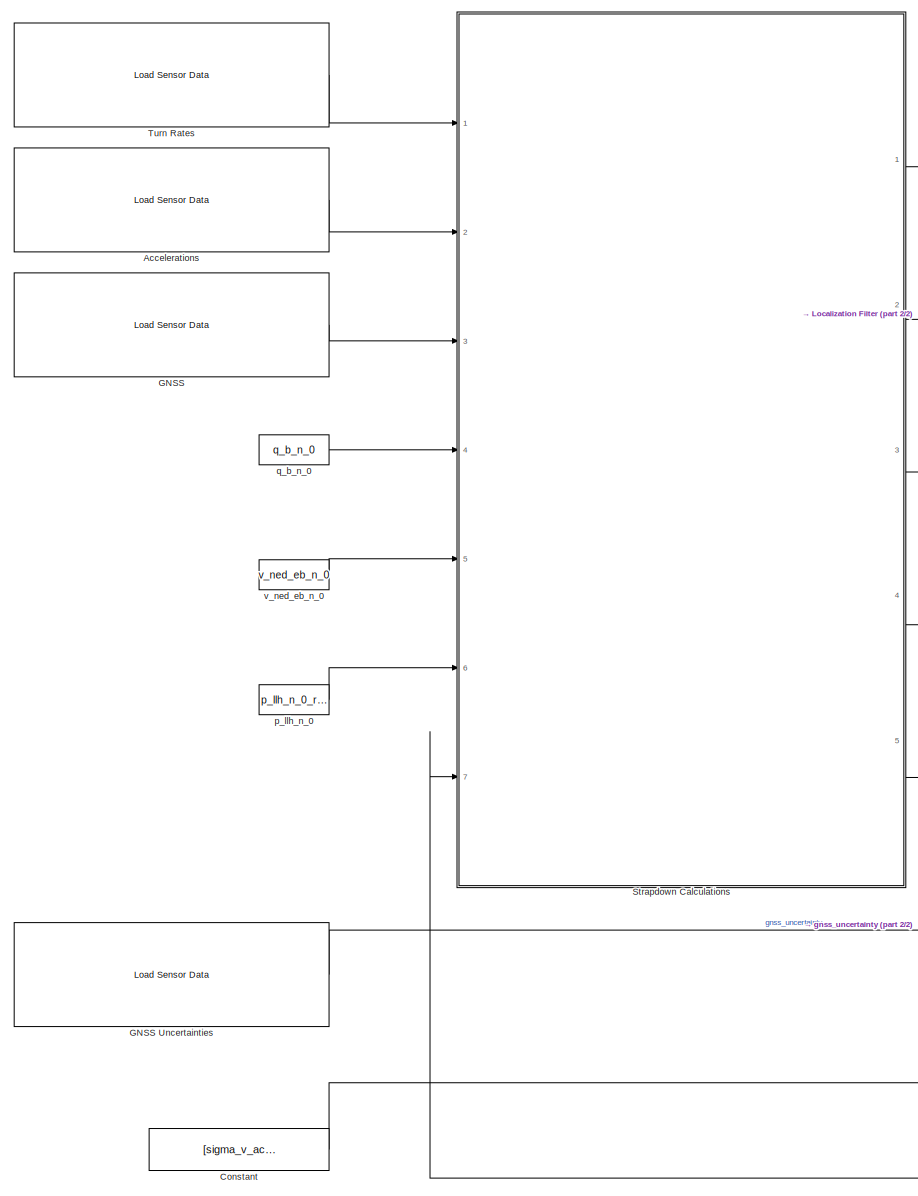
[diagram: root canvas - part 1/2, left side, full height]
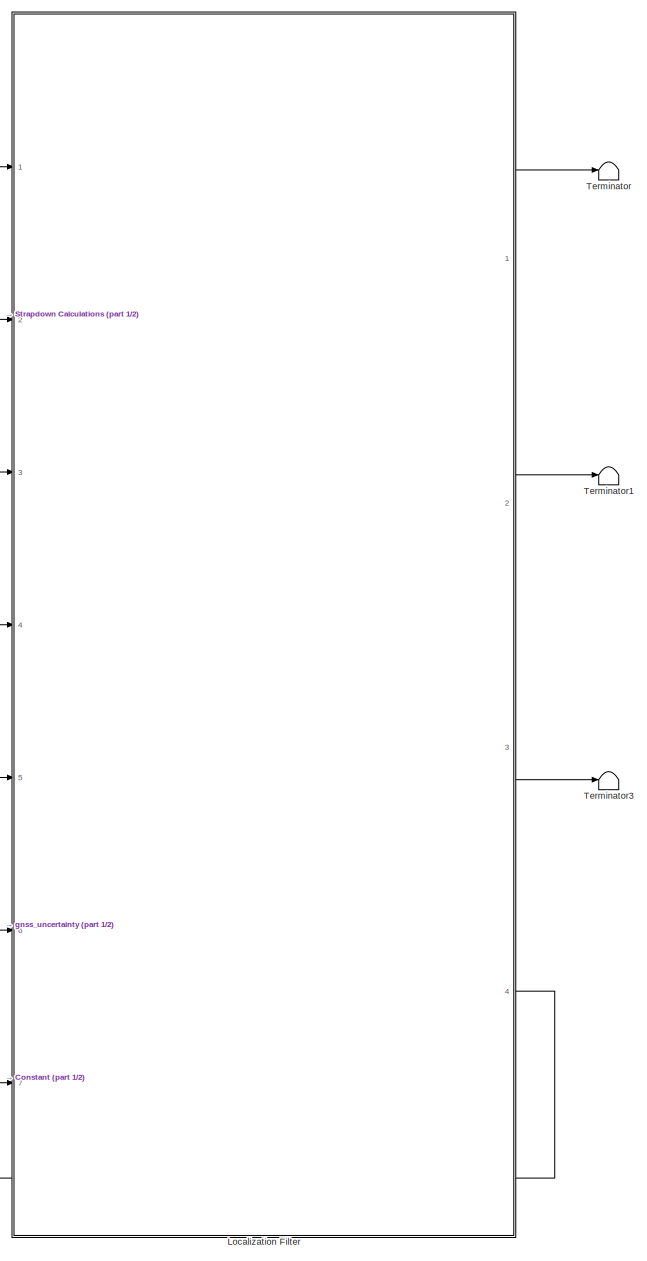
[diagram: root canvas - part 2/2, right side, full height]
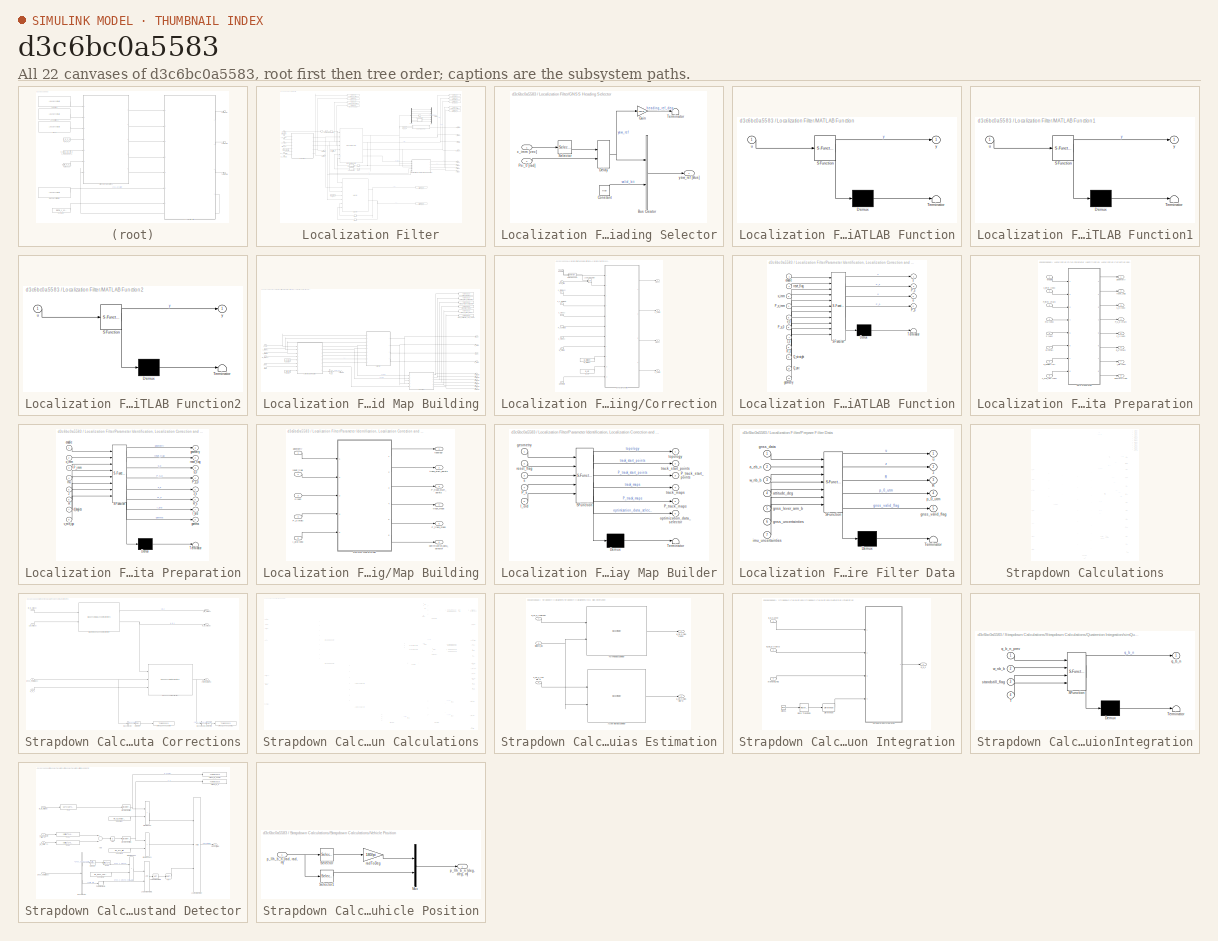
[diagram: thumbnail index - all 22 canvases of the model, root first then tree order]
MODEL slx_d3c6bc0a5583
KIND model
CONFIG AbsTol = auto
CONFIG EnableMultiTasking = off
CONFIG FixedStep = sample_time
CONFIG InitFcn = initLocalization\ninsertArtificialOutages
CONFIG MaxStep = auto
CONFIG MinStep = auto
CONFIG PreLoadFcn = initLocalization
CONFIG RelTol = 1e-3
CONFIG SampleTimeConstraint = Unconstrained
CONFIG Solver = FixedStepAuto
CONFIG SolverName = FixedStepAuto
CONFIG StartTime = 0.0
CONFIG StopFcn = simout_data_prepared = false;\nmap_data_prepared = false;\n% prepareSimOutData
CONFIG StopTime = 310
BLOCK [Reference] Accelerations  REF=libMdl_RecordedData/Load Sensor Data
  Ports = [0, 1]
  SourceBlock = libMdl_RecordedData/Load Sensor Data
  SourceType = Load Sensor Data From Workspace
BLOCK [Constant] Constant
  Value = [sigma_v_acc;sigma_v_gyro]
BLOCK [Reference] GNSS  REF=libMdl_RecordedData/Load Sensor Data
  Ports = [0, 1]
  SourceBlock = libMdl_RecordedData/Load Sensor Data
  SourceType = Load Sensor Data From Workspace
BLOCK [Reference] GNSS Uncertainties  REF=libMdl_RecordedData/Load Sensor Data
  Ports = [0, 1]
  SourceBlock = libMdl_RecordedData/Load Sensor Data
  SourceType = Load Sensor Data From Workspace
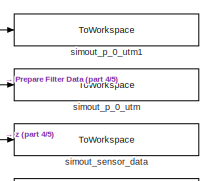
[diagram: Localization Filter - part 1/5, top center region]
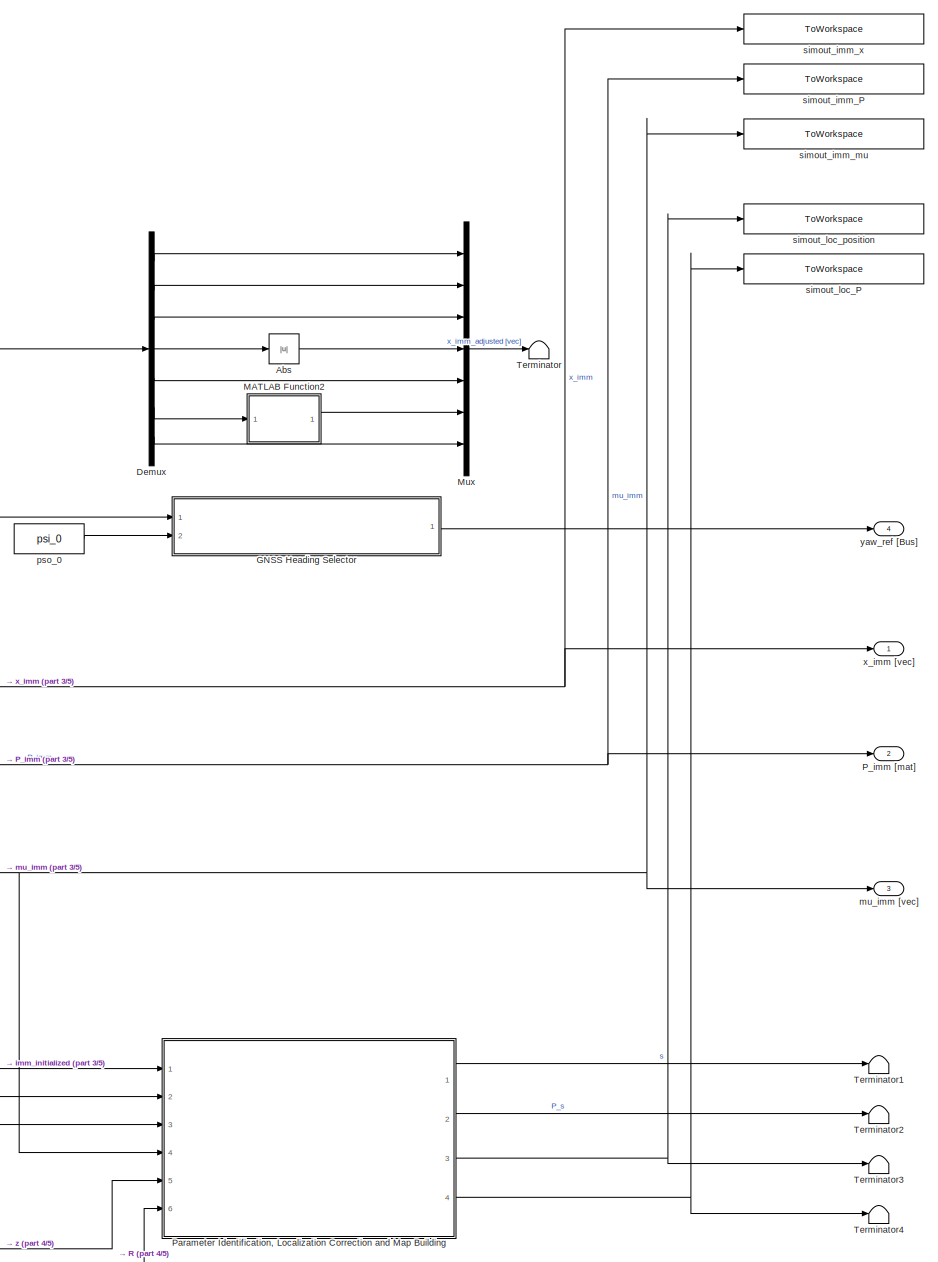
[diagram: Localization Filter - part 2/5, top right region]
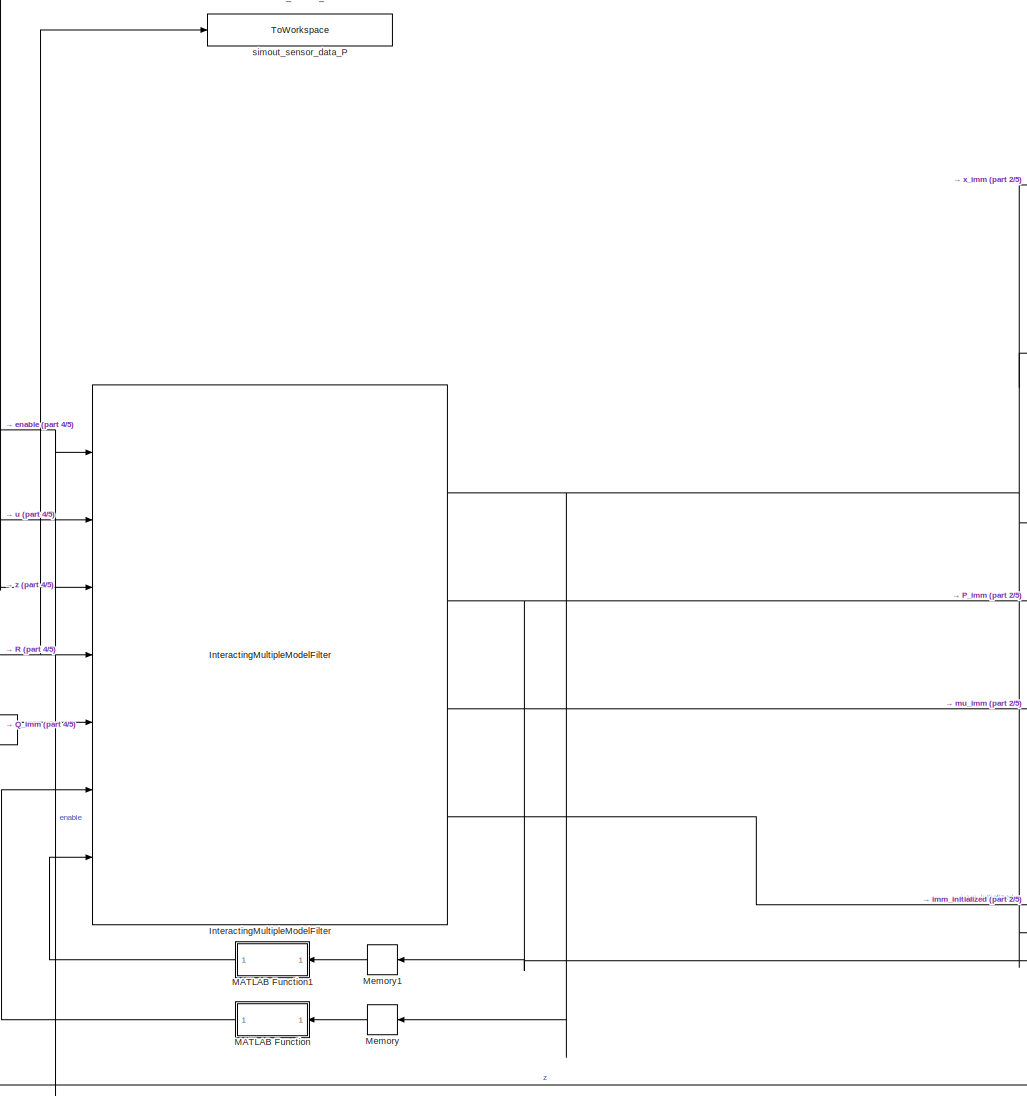
[diagram: Localization Filter - part 3/5, central region]
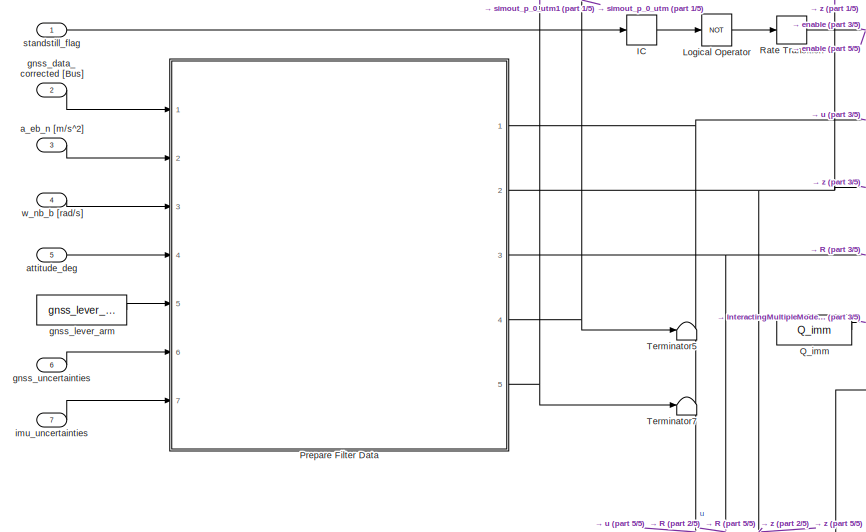
[diagram: Localization Filter - part 4/5, middle left region]
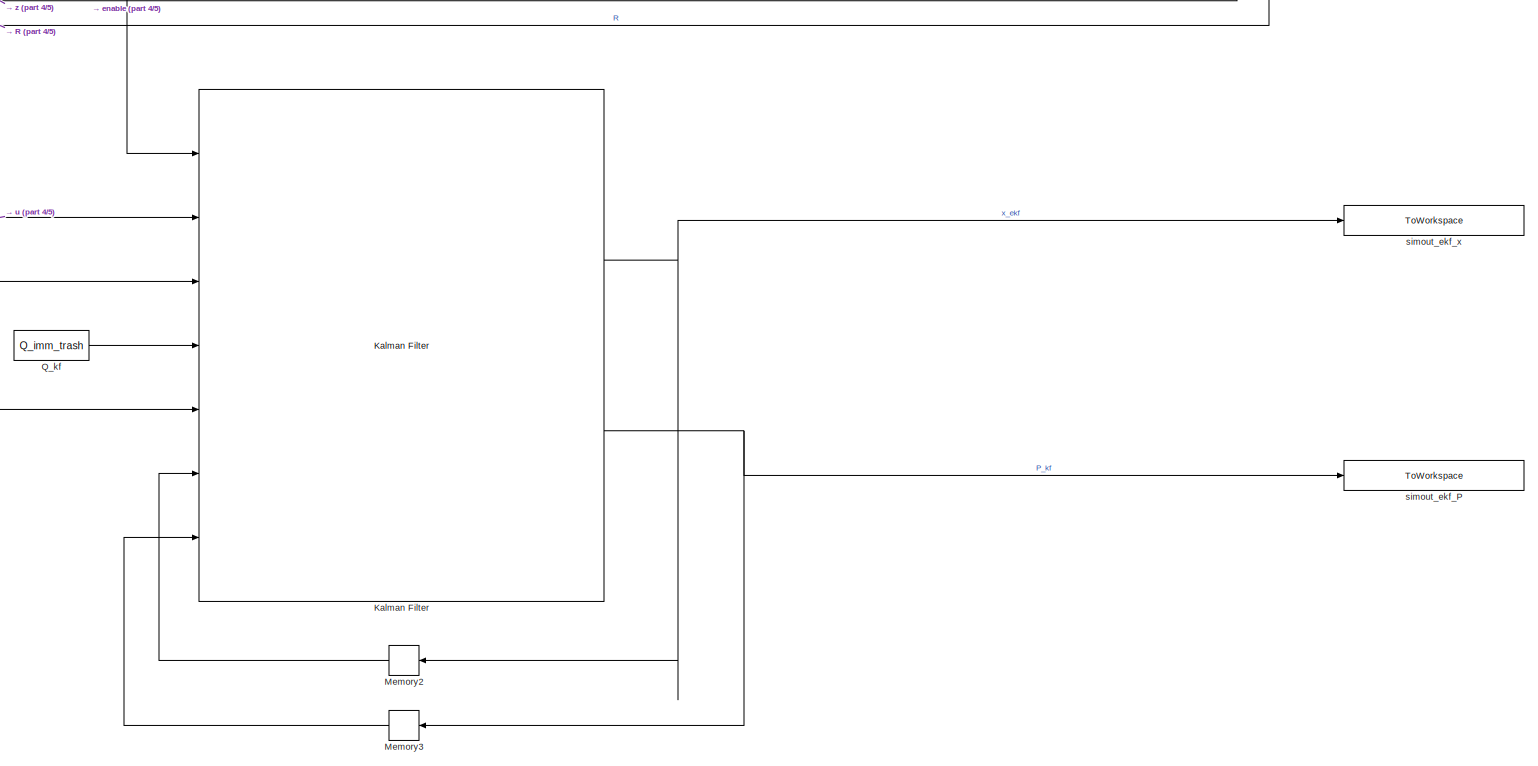
[diagram: Localization Filter - part 5/5, bottom center region]
BLOCK [SubSystem] Localization Filter
  Ports = [7, 4]
  RequestExecContextInheritance = off
BLOCK [Abs] Localization Filter/Abs
  SaturateOnIntegerOverflow = off
BLOCK [Demux] Localization Filter/Demux
  DisplayOption = bar
  Outputs = 7
  Ports = [1, 7]
BLOCK [SubSystem] Localization Filter/GNSS Heading Selector
  Ports = [2, 1]
  RequestExecContextInheritance = off
BLOCK [BusCreator] Localization Filter/GNSS Heading Selector/Bus Creator
  DisplayOption = bar
  InheritFromInputs = on
  Inputs = 2
  Ports = [2, 1]
BLOCK [Constant] Localization Filter/GNSS Heading Selector/Constant
  Value = true
BLOCK [Delay] Localization Filter/GNSS Heading Selector/Delay
  DelayLength = 1
  InitialCondition = 0
  InitialConditionSource = Input port
  InputPortMap = u0,p4
  Ports = [2, 1]
BLOCK [Gain] Localization Filter/GNSS Heading Selector/Gain
  Gain = 180/pi
  OutDataTypeStr = Inherit: Inherit via internal rule
  ParamDataTypeStr = Inherit: Inherit via internal rule
  SaturateOnIntegerOverflow = off
BLOCK [Inport] Localization Filter/GNSS Heading Selector/Psi_0 [rad]
  IconDisplay = Port number
  Port = 2
BLOCK [Selector] Localization Filter/GNSS Heading Selector/Selector
  IndexOptions = Index vector (dialog)
  Indices = 6
  InputPortWidth = 7
  OutputSizes = 1
  Ports = [1, 1]
BLOCK [Terminator] Localization Filter/GNSS Heading Selector/Terminator
BLOCK [Inport] Localization Filter/GNSS Heading Selector/x_imm [vec]
  IconDisplay = Port number
BLOCK [Outport] Localization Filter/GNSS Heading Selector/yaw_ref [Bus]
  IconDisplay = Port number
BLOCK [InitialCondition] Localization Filter/IC
BLOCK [Reference] Localization Filter/InteractingMultipleModelFilter  REF=libMdl_Imm/InteractingMultipleModelFilter
  Ports = [7, 4]
  SourceBlock = libMdl_Imm/InteractingMultipleModelFilter
  SourceType = Interacting Multiple Model Filter
BLOCK [Reference] Localization Filter/Kalman Filter  REF=libMdl_KalmanFilter/Kalman Filter
  Ports = [7, 2]
  SourceBlock = libMdl_KalmanFilter/Kalman Filter
  SourceType = Kalman Filter
BLOCK [Logic] Localization Filter/Logical Operator
  AllPortsSameDT = off
  Operator = NOT
  OutDataTypeStr = boolean
  Ports = [1, 1]
BLOCK [SubSystem] Localization Filter/MATLAB Function
  ErrorFcn = Stateflow.Translate.translate
  PermitHierarchicalResolution = ExplicitOnly
  Ports = [1, 1]
  RequestExecContextInheritance = off
  SFBlockType = MATLAB Function
  TreatAsAtomicUnit = on
BLOCK [Demux] Localization Filter/MATLAB Function/ Demux 
  DisplayOption = bar
  Outputs = 1
  Ports = [1, 1]
BLOCK [S-Function] Localization Filter/MATLAB Function/ SFunction 
  EnableBusSupport = on
  FunctionName = sf_sfun
  PortCounts = [1 2]
  Ports = [1, 2]
  SFcnIsStateOwnerBlock = off
  SFunctionDeploymentMode = off
  Tag = Stateflow S-Function 1
BLOCK [Terminator] Localization Filter/MATLAB Function/ Terminator 
BLOCK [Inport] Localization Filter/MATLAB Function/u
  IconDisplay = Port number
BLOCK [Outport] Localization Filter/MATLAB Function/y
  IconDisplay = Port number
BLOCK [SubSystem] Localization Filter/MATLAB Function1
  ErrorFcn = Stateflow.Translate.translate
  PermitHierarchicalResolution = ExplicitOnly
  Ports = [1, 1]
  RequestExecContextInheritance = off
  SFBlockType = MATLAB Function
  TreatAsAtomicUnit = on
BLOCK [Demux] Localization Filter/MATLAB Function1/ Demux 
  DisplayOption = bar
  Outputs = 1
  Ports = [1, 1]
BLOCK [S-Function] Localization Filter/MATLAB Function1/ SFunction 
  EnableBusSupport = on
  FunctionName = sf_sfun
  PortCounts = [1 2]
  Ports = [1, 2]
  SFcnIsStateOwnerBlock = off
  SFunctionDeploymentMode = off
  Tag = Stateflow S-Function 4
BLOCK [Terminator] Localization Filter/MATLAB Function1/ Terminator 
BLOCK [Inport] Localization Filter/MATLAB Function1/u
  IconDisplay = Port number
BLOCK [Outport] Localization Filter/MATLAB Function1/y
  IconDisplay = Port number
BLOCK [SubSystem] Localization Filter/MATLAB Function2
  ErrorFcn = Stateflow.Translate.translate
  PermitHierarchicalResolution = ExplicitOnly
  Ports = [1, 1]
  RequestExecContextInheritance = off
  SFBlockType = MATLAB Function
  TreatAsAtomicUnit = on
BLOCK [Demux] Localization Filter/MATLAB Function2/ Demux 
  DisplayOption = bar
  Outputs = 1
  Ports = [1, 1]
BLOCK [S-Function] Localization Filter/MATLAB Function2/ SFunction 
  EnableBusSupport = on
  FunctionName = sf_sfun
  PortCounts = [1 2]
  Ports = [1, 2]
  SFcnIsStateOwnerBlock = off
  SFunctionDeploymentMode = off
  Tag = Stateflow S-Function 2
BLOCK [Terminator] Localization Filter/MATLAB Function2/ Terminator 
BLOCK [Inport] Localization Filter/MATLAB Function2/u
  IconDisplay = Port number
BLOCK [Outport] Localization Filter/MATLAB Function2/y
  IconDisplay = Port number
BLOCK [Memory] Localization Filter/Memory
BLOCK [Memory] Localization Filter/Memory1
BLOCK [Memory] Localization Filter/Memory2
BLOCK [Memory] Localization Filter/Memory3
BLOCK [Mux] Localization Filter/Mux
  DisplayOption = bar
  Inputs = 7
  Ports = [7, 1]
BLOCK [Outport] Localization Filter/P_imm [mat]
  IconDisplay = Port number
  Port = 2
BLOCK [SubSystem] Localization Filter/Parameter Identification, Localization Correction and Map Building
  Ports = [6, 4]
  RequestExecContextInheritance = off
  SystemSampleTime = imm_sample_time
  TreatAsAtomicUnit = on
BLOCK [SubSystem] Localization Filter/Parameter Identification, Localization Correction and Map Building/Correction
  Ports = [9, 4]
  RequestExecContextInheritance = off
BLOCK [SubSystem] Localization Filter/Parameter Identification, Localization Correction and Map Building/Correction Data Preparation
  Ports = [8, 8]
  RequestExecContextInheritance = off
BLOCK [SubSystem] Localization Filter/Parameter Identification, Localization Correction and Map Building/Correction Data Preparation/Data Preparation
  ErrorFcn = Stateflow.Translate.translate
  PermitHierarchicalResolution = ExplicitOnly
  Ports = [8, 8]
  RequestExecContextInheritance = off
  SFBlockType = MATLAB Function
  TreatAsAtomicUnit = on
BLOCK [Demux] Localization Filter/Parameter Identification, Localization Correction and Map Building/Correction Data Preparation/Data Preparation/ Demux 
  DisplayOption = bar
  Outputs = 1
  Ports = [1, 1]
BLOCK [S-Function] Localization Filter/Parameter Identification, Localization Correction and Map Building/Correction Data Preparation/Data Preparation/ SFunction 
  EnableBusSupport = on
  FunctionName = sf_sfun
  PortCounts = [8 9]
  Ports = [8, 9]
  SFcnIsStateOwnerBlock = off
  SFunctionDeploymentMode = off
  Tag = Stateflow S-Function 8
BLOCK [Terminator] Localization Filter/Parameter Identification, Localization Correction and Map Building/Correction Data Preparation/Data Preparation/ Terminator 
BLOCK [Inport] Localization Filter/Parameter Identification, Localization Correction and Map Building/Correction Data Preparation/Data Preparation/P_imm
  IconDisplay = Port number
  Port = 3
BLOCK [Outport] Localization Filter/Parameter Identification, Localization Correction and Map Building/Correction Data Preparation/Data Preparation/P_s_0
  IconDisplay = Port number
  Port = 4
BLOCK [Inport] Localization Filter/Parameter Identification, Localization Correction and Map Building/Correction Data Preparation/Data Preparation/R
  IconDisplay = Port number
  Port = 6
BLOCK [Outport] Localization Filter/Parameter Identification, Localization Correction and Map Building/Correction Data Preparation/Data Preparation/R_s
  IconDisplay = Port number
  Port = 6
BLOCK [Inport] Localization Filter/Parameter Identification, Localization Correction and Map Building/Correction Data Preparation/Data Preparation/d_bogies
  IconDisplay = Port number
  Port = 7
BLOCK [Inport] Localization Filter/Parameter Identification, Localization Correction and Map Building/Correction Data Preparation/Data Preparation/enable
  IconDisplay = Port number
BLOCK [Outport] Localization Filter/Parameter Identification, Localization Correction and Map Building/Correction Data Preparation/Data Preparation/gamma
  IconDisplay = Port number
  Port = 8
BLOCK [Outport] Localization Filter/Parameter Identification, Localization Correction and Map Building/Correction Data Preparation/Data Preparation/geometry
  IconDisplay = Port number
BLOCK [Outport] Localization Filter/Parameter Identification, Localization Correction and Map Building/Correction Data Preparation/Data Preparation/l_old
  IconDisplay = Port number
  Port = 7
BLOCK [Inport] Localization Filter/Parameter Identification, Localization Correction and Map Building/Correction Data Preparation/Data Preparation/mu
  IconDisplay = Port number
  Port = 4
BLOCK [Outport] Localization Filter/Parameter Identification, Localization Correction and Map Building/Correction Data Preparation/Data Preparation/reset_flag
  IconDisplay = Port number
  Port = 2
BLOCK [Outport] Localization Filter/Parameter Identification, Localization Correction and Map Building/Correction Data Preparation/Data Preparation/s_0
  IconDisplay = Port number
  Port = 3
BLOCK [Inport] Localization Filter/Parameter Identification, Localization Correction and Map Building/Correction Data Preparation/Data Preparation/v_min_tgc
  IconDisplay = Port number
  Port = 8
BLOCK [Inport] Localization Filter/Parameter Identification, Localization Correction and Map Building/Correction Data Preparation/Data Preparation/x_imm
  IconDisplay = Port number
  Port = 2
BLOCK [Inport] Localization Filter/Parameter Identification, Localization Correction and Map Building/Correction Data Preparation/Data Preparation/z
  IconDisplay = Port number
  Port = 5
BLOCK [Outport] Localization Filter/Parameter Identification, Localization Correction and Map Building/Correction Data Preparation/Data Preparation/z_s
  IconDisplay = Port number
  Port = 5
BLOCK [Inport] Localization Filter/Parameter Identification, Localization Correction and Map Building/Correction Data Preparation/P_imm [mat]
  IconDisplay = Port number
  Port = 3
BLOCK [Outport] Localization Filter/Parameter Identification, Localization Correction and Map Building/Correction Data Preparation/P_s_0 [mat]
  IconDisplay = Port number
  Port = 4
  VectorParamsAs1DForOutWhenUnconnected = off
BLOCK [Inport] Localization Filter/Parameter Identification, Localization Correction and Map Building/Correction Data Preparation/R [mat]
  IconDisplay = Port number
  Port = 7
BLOCK [Outport] Localization Filter/Parameter Identification, Localization Correction and Map Building/Correction Data Preparation/R_s [mat]
  IconDisplay = Port number
  Port = 6
  VectorParamsAs1DForOutWhenUnconnected = off
BLOCK [Inport] Localization Filter/Parameter Identification, Localization Correction and Map Building/Correction Data Preparation/d_bogies [m]
  IconDisplay = Port number
  Port = 5
BLOCK [Inport] Localization Filter/Parameter Identification, Localization Correction and Map Building/Correction Data Preparation/enable
  IconDisplay = Port number
BLOCK [Outport] Localization Filter/Parameter Identification, Localization Correction and Map Building/Correction Data Preparation/gamma [rad]
  IconDisplay = Port number
  Port = 8
  VectorParamsAs1DForOutWhenUnconnected = off
BLOCK [Outport] Localization Filter/Parameter Identification, Localization Correction and Map Building/Correction Data Preparation/geometry
  IconDisplay = Port number
  VectorParamsAs1DForOutWhenUnconnected = off
BLOCK [Outport] Localization Filter/Parameter Identification, Localization Correction and Map Building/Correction Data Preparation/l_old [vec]
  IconDisplay = Port number
  Port = 7
  VectorParamsAs1DForOutWhenUnconnected = off
BLOCK [Inport] Localization Filter/Parameter Identification, Localization Correction and Map Building/Correction Data Preparation/mu [vec]
  IconDisplay = Port number
  Port = 4
BLOCK [Outport] Localization Filter/Parameter Identification, Localization Correction and Map Building/Correction Data Preparation/reset_flag
  IconDisplay = Port number
  Port = 2
  VectorParamsAs1DForOutWhenUnconnected = off
BLOCK [Outport] Localization Filter/Parameter Identification, Localization Correction and Map Building/Correction Data Preparation/s_0 [vec]
  IconDisplay = Port number
  Port = 3
  VectorParamsAs1DForOutWhenUnconnected = off
BLOCK [Inport] Localization Filter/Parameter Identification, Localization Correction and Map Building/Correction Data Preparation/v_min_tgc [vec]
  IconDisplay = Port number
  Port = 8
BLOCK [Inport] Localization Filter/Parameter Identification, Localization Correction and Map Building/Correction Data Preparation/x_imm [vec]
  IconDisplay = Port number
  Port = 2
BLOCK [Inport] Localization Filter/Parameter Identification, Localization Correction and Map Building/Correction Data Preparation/z [vec]
  IconDisplay = Port number
  Port = 6
BLOCK [Outport] Localization Filter/Parameter Identification, Localization Correction and Map Building/Correction Data Preparation/z_s [vec]
  IconDisplay = Port number
  Port = 5
  VectorParamsAs1DForOutWhenUnconnected = off
BLOCK [Reference] Localization Filter/Parameter Identification, Localization Correction and Map Building/Correction/Detect Change  REF=simulink/Logic and Bit
Operations/Detect
Change
  Ports = [1, 1]
  SourceBlock = simulink/Logic and Bit\nOperations/Detect\nChange
  SourceProductBaseCode = SL
  SourceType = Detect Change
BLOCK [Logic] Localization Filter/Parameter Identification, Localization Correction and Map Building/Correction/Logical Operator
  AllPortsSameDT = off
  Operator = OR
  OutDataTypeStr = boolean
  Ports = [2, 1]
BLOCK [SubSystem] Localization Filter/Parameter Identification, Localization Correction and Map Building/Correction/MATLAB Function
  ErrorFcn = Stateflow.Translate.translate
  PermitHierarchicalResolution = ExplicitOnly
  Ports = [11, 4]
  RequestExecContextInheritance = off
  SFBlockType = MATLAB Function
  TreatAsAtomicUnit = on
BLOCK [Demux] Localization Filter/Parameter Identification, Localization Correction and Map Building/Correction/MATLAB Function/ Demux 
  DisplayOption = bar
  Outputs = 1
  Ports = [1, 1]
BLOCK [S-Function] Localization Filter/Parameter Identification, Localization Correction and Map Building/Correction/MATLAB Function/ SFunction 
  EnableBusSupport = on
  FunctionName = sf_sfun
  PortCounts = [11 5]
  Ports = [11, 5]
  SFcnIsStateOwnerBlock = off
  SFunctionDeploymentMode = off
  Tag = Stateflow S-Function 5
BLOCK [Terminator] Localization Filter/Parameter Identification, Localization Correction and Map Building/Correction/MATLAB Function/ Terminator 
BLOCK [Outport] Localization Filter/Parameter Identification, Localization Correction and Map Building/Correction/MATLAB Function/P_o
  IconDisplay = Port number
  Port = 4
BLOCK [Outport] Localization Filter/Parameter Identification, Localization Correction and Map Building/Correction/MATLAB Function/P_s
  IconDisplay = Port number
  Port = 2
BLOCK [Inport] Localization Filter/Parameter Identification, Localization Correction and Map Building/Correction/MATLAB Function/P_s_0
  IconDisplay = Port number
  Port = 6
BLOCK [Inport] Localization Filter/Parameter Identification, Localization Correction and Map Building/Correction/MATLAB Function/P_x_imm
  IconDisplay = Port number
  Port = 4
BLOCK [Inport] Localization Filter/Parameter Identification, Localization Correction and Map Building/Correction/MATLAB Function/Q_arc
  IconDisplay = Port number
  Port = 10
BLOCK [Inport] Localization Filter/Parameter Identification, Localization Correction and Map Building/Correction/MATLAB Function/Q_straight
  IconDisplay = Port number
  Port = 9
BLOCK [Inport] Localization Filter/Parameter Identification, Localization Correction and Map Building/Correction/MATLAB Function/R_s
  IconDisplay = Port number
  Port = 8
BLOCK [Inport] Localization Filter/Parameter Identification, Localization Correction and Map Building/Correction/MATLAB Function/enable
  IconDisplay = Port number
BLOCK [Inport] Localization Filter/Parameter Identification, Localization Correction and Map Building/Correction/MATLAB Function/geometry
  IconDisplay = Port number
  Port = 11
BLOCK [Outport] Localization Filter/Parameter Identification, Localization Correction and Map Building/Correction/MATLAB Function/o
  IconDisplay = Port number
  Port = 3
BLOCK [Inport] Localization Filter/Parameter Identification, Localization Correction and Map Building/Correction/MATLAB Function/reset_flag
  IconDisplay = Port number
  Port = 2
BLOCK [Outport] Localization Filter/Parameter Identification, Localization Correction and Map Building/Correction/MATLAB Function/s
  IconDisplay = Port number
BLOCK [Inport] Localization Filter/Parameter Identification, Localization Correction and Map Building/Correction/MATLAB Function/s_0
  IconDisplay = Port number
  Port = 5
BLOCK [Inport] Localization Filter/Parameter Identification, Localization Correction and Map Building/Correction/MATLAB Function/x_imm
  IconDisplay = Port number
  Port = 3
BLOCK [Inport] Localization Filter/Parameter Identification, Localization Correction and Map Building/Correction/MATLAB Function/z_s
  IconDisplay = Port number
  Port = 7
BLOCK [Outport] Localization Filter/Parameter Identification, Localization Correction and Map Building/Correction/P_o [mat]
  IconDisplay = Port number
  Port = 4
  VectorParamsAs1DForOutWhenUnconnected = off
BLOCK [Outport] Localization Filter/Parameter Identification, Localization Correction and Map Building/Correction/P_s [mat]
  IconDisplay = Port number
  Port = 2
  VectorParamsAs1DForOutWhenUnconnected = off
BLOCK [Inport] Localization Filter/Parameter Identification, Localization Correction and Map Building/Correction/P_s_0 [mat]
  IconDisplay = Port number
  Port = 7
BLOCK [Inport] Localization Filter/Parameter Identification, Localization Correction and Map Building/Correction/P_x_imm [mat]
  IconDisplay = Port number
  Port = 3
BLOCK [Constant] Localization Filter/Parameter Identification, Localization Correction and Map Building/Correction/Q_arc
  Value = Q_arc
BLOCK [Constant] Localization Filter/Parameter Identification, Localization Correction and Map Building/Correction/Q_straight
  Value = Q_straight
BLOCK [Inport] Localization Filter/Parameter Identification, Localization Correction and Map Building/Correction/R_s [mat]
  IconDisplay = Port number
  Port = 9
BLOCK [Inport] Localization Filter/Parameter Identification, Localization Correction and Map Building/Correction/enable
  IconDisplay = Port number
BLOCK [Inport] Localization Filter/Parameter Identification, Localization Correction and Map Building/Correction/geometry
  IconDisplay = Port number
  Port = 4
BLOCK [Outport] Localization Filter/Parameter Identification, Localization Correction and Map Building/Correction/o [vec]
  IconDisplay = Port number
  Port = 3
  VectorParamsAs1DForOutWhenUnconnected = off
BLOCK [Inport] Localization Filter/Parameter Identification, Localization Correction and Map Building/Correction/reset_flag
  IconDisplay = Port number
  Port = 5
BLOCK [Outport] Localization Filter/Parameter Identification, Localization Correction and Map Building/Correction/s [vec]
  IconDisplay = Port number
  VectorParamsAs1DForOutWhenUnconnected = off
BLOCK [Inport] Localization Filter/Parameter Identification, Localization Correction and Map Building/Correction/s_0 [vec]
  IconDisplay = Port number
  Port = 6
BLOCK [Inport] Localization Filter/Parameter Identification, Localization Correction and Map Building/Correction/x_imm [vec]
  IconDisplay = Port number
  Port = 2
BLOCK [Inport] Localization Filter/Parameter Identification, Localization Correction and Map Building/Correction/z_s [vec]
  IconDisplay = Port number
  Port = 8
BLOCK [Gain] Localization Filter/Parameter Identification, Localization Correction and Map Building/Gain
  Gain = 180/pi
  OutDataTypeStr = Inherit: Inherit via internal rule
  ParamDataTypeStr = Inherit: Inherit via internal rule
  SaturateOnIntegerOverflow = off
BLOCK [SubSystem] Localization Filter/Parameter Identification, Localization Correction and Map Building/Map Building
  Ports = [5, 6]
  RequestExecContextInheritance = off
BLOCK [Inport] Localization Filter/Parameter Identification, Localization Correction and Map Building/Map Building/P_s [mat]
  IconDisplay = Port number
  Port = 4
BLOCK [Outport] Localization Filter/Parameter Identification, Localization Correction and Map Building/Map Building/P_track_maps
  IconDisplay = Port number
  Port = 5
  VectorParamsAs1DForOutWhenUnconnected = off
BLOCK [Outport] Localization Filter/Parameter Identification, Localization Correction and Map Building/Map Building/P_track_start_points
  IconDisplay = Port number
  Port = 3
  VectorParamsAs1DForOutWhenUnconnected = off
BLOCK [SubSystem] Localization Filter/Parameter Identification, Localization Correction and Map Building/Map Building/Railway Map Builder
  ErrorFcn = Stateflow.Translate.translate
  PermitHierarchicalResolution = ExplicitOnly
  Ports = [5, 6]
  RequestExecContextInheritance = off
  SFBlockType = MATLAB Function
  TreatAsAtomicUnit = on
BLOCK [Demux] Localization Filter/Parameter Identification, Localization Correction and Map Building/Map Building/Railway Map Builder/ Demux 
  DisplayOption = bar
  Outputs = 1
  Ports = [1, 1]
BLOCK [S-Function] Localization Filter/Parameter Identification, Localization Correction and Map Building/Map Building/Railway Map Builder/ SFunction 
  EnableBusSupport = on
  FunctionName = sf_sfun
  Parameters = max_track_map_size
  PortCounts = [5 7]
  Ports = [5, 7]
  SFcnIsStateOwnerBlock = off
  SFunctionDeploymentMode = off
  Tag = Stateflow S-Function 7
BLOCK [Terminator] Localization Filter/Parameter Identification, Localization Correction and Map Building/Map Building/Railway Map Builder/ Terminator 
BLOCK [Inport] Localization Filter/Parameter Identification, Localization Correction and Map Building/Map Building/Railway Map Builder/P_s
  IconDisplay = Port number
  Port = 4
BLOCK [Outport] Localization Filter/Parameter Identification, Localization Correction and Map Building/Map Building/Railway Map Builder/P_track_maps
  IconDisplay = Port number
  Port = 5
BLOCK [Outport] Localization Filter/Parameter Identification, Localization Correction and Map Building/Map Building/Railway Map Builder/P_track_start_points
  IconDisplay = Port number
  Port = 3
BLOCK [Inport] Localization Filter/Parameter Identification, Localization Correction and Map Building/Map Building/Railway Map Builder/geometry
  IconDisplay = Port number
BLOCK [Inport] Localization Filter/Parameter Identification, Localization Correction and Map Building/Map Building/Railway Map Builder/l_old
  IconDisplay = Port number
  Port = 5
BLOCK [Outport] Localization Filter/Parameter Identification, Localization Correction and Map Building/Map Building/Railway Map Builder/optimization_data_selector
  IconDisplay = Port number
  Port = 6
BLOCK [Inport] Localization Filter/Parameter Identification, Localization Correction and Map Building/Map Building/Railway Map Builder/reset_flag
  IconDisplay = Port number
  Port = 2
BLOCK [Inport] Localization Filter/Parameter Identification, Localization Correction and Map Building/Map Building/Railway Map Builder/s
  IconDisplay = Port number
  Port = 3
BLOCK [Outport] Localization Filter/Parameter Identification, Localization Correction and Map Building/Map Building/Railway Map Builder/topology
  IconDisplay = Port number
BLOCK [Outport] Localization Filter/Parameter Identification, Localization Correction and Map Building/Map Building/Railway Map Builder/track_maps
  IconDisplay = Port number
  Port = 4
BLOCK [Outport] Localization Filter/Parameter Identification, Localization Correction and Map Building/Map Building/Railway Map Builder/track_start_points
  IconDisplay = Port number
  Port = 2
BLOCK [Inport] Localization Filter/Parameter Identification, Localization Correction and Map Building/Map Building/geometry
  IconDisplay = Port number
BLOCK [Inport] Localization Filter/Parameter Identification, Localization Correction and Map Building/Map Building/l_old [vec]
  IconDisplay = Port number
  Port = 5
BLOCK [Outport] Localization Filter/Parameter Identification, Localization Correction and Map Building/Map Building/optimization_data_selector
  IconDisplay = Port number
  Port = 6
  VectorParamsAs1DForOutWhenUnconnected = off
BLOCK [Inport] Localization Filter/Parameter Identification, Localization Correction and Map Building/Map Building/reset_flag
  IconDisplay = Port number
  Port = 2
BLOCK [Inport] Localization Filter/Parameter Identification, Localization Correction and Map Building/Map Building/s [vec]
  IconDisplay = Port number
  Port = 3
BLOCK [Outport] Localization Filter/Parameter Identification, Localization Correction and Map Building/Map Building/topology
  IconDisplay = Port number
  VectorParamsAs1DForOutWhenUnconnected = off
BLOCK [Outport] Localization Filter/Parameter Identification, Localization Correction and Map Building/Map Building/track_maps
  IconDisplay = Port number
  Port = 4
  VectorParamsAs1DForOutWhenUnconnected = off
BLOCK [Outport] Localization Filter/Parameter Identification, Localization Correction and Map Building/Map Building/track_start_points
  IconDisplay = Port number
  Port = 2
  VectorParamsAs1DForOutWhenUnconnected = off
BLOCK [Inport] Localization Filter/Parameter Identification, Localization Correction and Map Building/P_imm [mat]
  IconDisplay = Port number
  Port = 3
BLOCK [Outport] Localization Filter/Parameter Identification, Localization Correction and Map Building/P_o [mat]
  IconDisplay = Port number
  Port = 4
  VectorParamsAs1DForOutWhenUnconnected = off
BLOCK [Outport] Localization Filter/Parameter Identification, Localization Correction and Map Building/P_s [mat]
  IconDisplay = Port number
  Port = 2
  VectorParamsAs1DForOutWhenUnconnected = off
BLOCK [Inport] Localization Filter/Parameter Identification, Localization Correction and Map Building/R [mat]
  IconDisplay = Port number
  Port = 6
BLOCK [Terminator] Localization Filter/Parameter Identification, Localization Correction and Map Building/Terminator1
BLOCK [Terminator] Localization Filter/Parameter Identification, Localization Correction and Map Building/Terminator2
  Commented = on
BLOCK [Terminator] Localization Filter/Parameter Identification, Localization Correction and Map Building/Terminator5
  Commented = on
BLOCK [Terminator] Localization Filter/Parameter Identification, Localization Correction and Map Building/Terminator6
  Commented = on
BLOCK [Terminator] Localization Filter/Parameter Identification, Localization Correction and Map Building/Terminator7
  Commented = on
BLOCK [Terminator] Localization Filter/Parameter Identification, Localization Correction and Map Building/Terminator8
  Commented = on
BLOCK [Terminator] Localization Filter/Parameter Identification, Localization Correction and Map Building/Terminator9
  Commented = on
BLOCK [Constant] Localization Filter/Parameter Identification, Localization Correction and Map Building/d_bogies
  Value = d_bogies
BLOCK [Inport] Localization Filter/Parameter Identification, Localization Correction and Map Building/enable
  IconDisplay = Port number
BLOCK [Inport] Localization Filter/Parameter Identification, Localization Correction and Map Building/mu_imm [vec]
  IconDisplay = Port number
  Port = 4
BLOCK [Outport] Localization Filter/Parameter Identification, Localization Correction and Map Building/o [vec]
  IconDisplay = Port number
  Port = 3
  VectorParamsAs1DForOutWhenUnconnected = off
BLOCK [Outport] Localization Filter/Parameter Identification, Localization Correction and Map Building/s [vec]
  IconDisplay = Port number
  VectorParamsAs1DForOutWhenUnconnected = off
BLOCK [ToWorkspace] Localization Filter/Parameter Identification, Localization Correction and Map Building/simout_P_track_maps
  FixptAsFi = on
  MaxDataPoints = 1
  Ports = [1]
  SampleTime = -1
  SaveFormat = Structure With Time
  VariableName = simout_P_track_maps
BLOCK [ToWorkspace] Localization Filter/Parameter Identification, Localization Correction and Map Building/simout_P_track_start_points
  FixptAsFi = on
  MaxDataPoints = 1
  Ports = [1]
  SampleTime = -1
  SaveFormat = Structure With Time
  VariableName = simout_P_track_start_points
BLOCK [ToWorkspace] Localization Filter/Parameter Identification, Localization Correction and Map Building/simout_optimization_data_selector
  FixptAsFi = on
  MaxDataPoints = 1
  Ports = [1]
  SampleTime = -1
  SaveFormat = Structure With Time
  VariableName = simout_optimization_data_selector
BLOCK [ToWorkspace] Localization Filter/Parameter Identification, Localization Correction and Map Building/simout_topology
  Commented = on
  FixptAsFi = on
  MaxDataPoints = 1
  Ports = [1]
  SampleTime = -1
  SaveFormat = Structure With Time
  VariableName = simout_topology
BLOCK [ToWorkspace] Localization Filter/Parameter Identification, Localization Correction and Map Building/simout_track_maps
  FixptAsFi = on
  MaxDataPoints = 1
  Ports = [1]
  SampleTime = -1
  SaveFormat = Structure With Time
  VariableName = simout_track_maps
BLOCK [ToWorkspace] Localization Filter/Parameter Identification, Localization Correction and Map Building/simout_track_start_points
  FixptAsFi = on
  MaxDataPoints = 1
  Ports = [1]
  SampleTime = -1
  SaveFormat = Structure With Time
  VariableName = simout_track_start_points
BLOCK [Constant] Localization Filter/Parameter Identification, Localization Correction and Map Building/v_min_tgc
  Value = v_min_tgc
BLOCK [Inport] Localization Filter/Parameter Identification, Localization Correction and Map Building/x_imm [vec]
  IconDisplay = Port number
  Port = 2
BLOCK [Inport] Localization Filter/Parameter Identification, Localization Correction and Map Building/z [vec]
  IconDisplay = Port number
  Port = 5
BLOCK [SubSystem] Localization Filter/Prepare Filter Data
  ErrorFcn = Stateflow.Translate.translate
  PermitHierarchicalResolution = ExplicitOnly
  Ports = [7, 5]
  RequestExecContextInheritance = off
  SFBlockType = MATLAB Function
  SystemSampleTime = imm_sample_time
  TreatAsAtomicUnit = on
BLOCK [Demux] Localization Filter/Prepare Filter Data/ Demux 
  DisplayOption = bar
  Outputs = 1
  Ports = [1, 1]
BLOCK [S-Function] Localization Filter/Prepare Filter Data/ SFunction 
  EnableBusSupport = on
  FunctionName = sf_sfun
  PortCounts = [7 6]
  Ports = [7, 6]
  SFcnIsStateOwnerBlock = off
  SFunctionDeploymentMode = off
  Tag = Stateflow S-Function 3
BLOCK [Terminator] Localization Filter/Prepare Filter Data/ Terminator 
BLOCK [Outport] Localization Filter/Prepare Filter Data/R
  IconDisplay = Port number
  Port = 3
BLOCK [Inport] Localization Filter/Prepare Filter Data/a_eb_n
  IconDisplay = Port number
  Port = 2
BLOCK [Inport] Localization Filter/Prepare Filter Data/attitude_deg
  IconDisplay = Port number
  Port = 4
BLOCK [Inport] Localization Filter/Prepare Filter Data/gnss_data
  IconDisplay = Port number
BLOCK [Inport] Localization Filter/Prepare Filter Data/gnss_lever_arm_b
  IconDisplay = Port number
  Port = 5
BLOCK [Inport] Localization Filter/Prepare Filter Data/gnss_uncertainties
  IconDisplay = Port number
  Port = 6
BLOCK [Outport] Localization Filter/Prepare Filter Data/gnss_valid_flag
  IconDisplay = Port number
  Port = 5
BLOCK [Inport] Localization Filter/Prepare Filter Data/imu_uncertainties
  IconDisplay = Port number
  Port = 7
BLOCK [Outport] Localization Filter/Prepare Filter Data/p_0_utm
  IconDisplay = Port number
  Port = 4
BLOCK [Outport] Localization Filter/Prepare Filter Data/u
  IconDisplay = Port number
BLOCK [Inport] Localization Filter/Prepare Filter Data/w_nb_b
  IconDisplay = Port number
  Port = 3
BLOCK [Outport] Localization Filter/Prepare Filter Data/z
  IconDisplay = Port number
  Port = 2
BLOCK [Constant] Localization Filter/Q_imm
  Value = Q_imm
BLOCK [Constant] Localization Filter/Q_kf
  Value = Q_imm_trash
BLOCK [RateTransition] Localization Filter/Rate Transition
BLOCK [Terminator] Localization Filter/Terminator
BLOCK [Terminator] Localization Filter/Terminator1
BLOCK [Terminator] Localization Filter/Terminator2
BLOCK [Terminator] Localization Filter/Terminator3
BLOCK [Terminator] Localization Filter/Terminator4
BLOCK [Terminator] Localization Filter/Terminator5
BLOCK [Terminator] Localization Filter/Terminator7
BLOCK [Inport] Localization Filter/a_eb_n [m//s^2]
  IconDisplay = Port number
  Port = 3
BLOCK [Inport] Localization Filter/attitude_deg
  IconDisplay = Port number
  Port = 5
BLOCK [Inport] Localization Filter/gnss_data_corrected [Bus]
  IconDisplay = Port number
  Port = 2
BLOCK [Constant] Localization Filter/gnss_lever_arm
  Value = gnss_lever_arm
BLOCK [Inport] Localization Filter/gnss_uncertainties
  IconDisplay = Port number
  Port = 6
BLOCK [Inport] Localization Filter/imu_uncertainties
  IconDisplay = Port number
  Port = 7
BLOCK [Outport] Localization Filter/mu_imm [vec]
  IconDisplay = Port number
  Port = 3
BLOCK [Constant] Localization Filter/pso_0
  Value = psi_0
BLOCK [ToWorkspace] Localization Filter/simout_ekf_P
  FixptAsFi = on
  MaxDataPoints = inf
  Ports = [1]
  SampleTime = -1
  SaveFormat = Timeseries
  VariableName = simout_ekf_P
BLOCK [ToWorkspace] Localization Filter/simout_ekf_x
  FixptAsFi = on
  MaxDataPoints = inf
  Ports = [1]
  SampleTime = -1
  SaveFormat = Timeseries
  VariableName = simout_ekf_x
BLOCK [ToWorkspace] Localization Filter/simout_imm_P
  FixptAsFi = on
  MaxDataPoints = inf
  Ports = [1]
  SampleTime = -1
  SaveFormat = Timeseries
  VariableName = simout_imm_P
BLOCK [ToWorkspace] Localization Filter/simout_imm_mu
  FixptAsFi = on
  MaxDataPoints = inf
  Ports = [1]
  SampleTime = -1
  SaveFormat = Timeseries
  VariableName = simout_imm_mu
BLOCK [ToWorkspace] Localization Filter/simout_imm_x
  FixptAsFi = on
  MaxDataPoints = inf
  Ports = [1]
  SampleTime = -1
  SaveFormat = Timeseries
  VariableName = simout_imm_x
BLOCK [ToWorkspace] Localization Filter/simout_loc_P
  FixptAsFi = on
  MaxDataPoints = inf
  Ports = [1]
  SampleTime = -1
  SaveFormat = Timeseries
  VariableName = simout_loc_P
BLOCK [ToWorkspace] Localization Filter/simout_loc_position
  FixptAsFi = on
  MaxDataPoints = inf
  Ports = [1]
  SampleTime = -1
  SaveFormat = Timeseries
  VariableName = simout_loc_position
BLOCK [ToWorkspace] Localization Filter/simout_p_0_utm
  FixptAsFi = on
  MaxDataPoints = 1
  Ports = [1]
  SampleTime = -1
  SaveFormat = Timeseries
  VariableName = simout_p_0_utm
BLOCK [ToWorkspace] Localization Filter/simout_p_0_utm1
  FixptAsFi = on
  MaxDataPoints = inf
  Ports = [1]
  SampleTime = -1
  SaveFormat = Timeseries
  VariableName = simout_gnss_valid_flag
BLOCK [ToWorkspace] Localization Filter/simout_sensor_data
  FixptAsFi = on
  MaxDataPoints = inf
  Ports = [1]
  SampleTime = -1
  SaveFormat = Timeseries
  VariableName = simout_sensor_data
BLOCK [ToWorkspace] Localization Filter/simout_sensor_data_P
  FixptAsFi = on
  MaxDataPoints = inf
  Ports = [1]
  SampleTime = -1
  SaveFormat = Timeseries
  VariableName = simout_sensor_data_P
BLOCK [Inport] Localization Filter/standstill_flag
  IconDisplay = Port number
BLOCK [Inport] Localization Filter/w_nb_b [rad//s]
  IconDisplay = Port number
  Port = 4
BLOCK [Outport] Localization Filter/x_imm [vec]
  IconDisplay = Port number
BLOCK [Outport] Localization Filter/yaw_ref [Bus]
  IconDisplay = Port number
  Port = 4
BLOCK [SubSystem] Strapdown Calculations
  Ports = [7, 5]
  RequestExecContextInheritance = off
BLOCK [Sum] Strapdown Calculations/Add
  InputSameDT = off
  Inputs = +-
  OutDataTypeStr = Inherit: Inherit via internal rule
  Ports = [2, 1]
  SaturateOnIntegerOverflow = off
BLOCK [Delay] Strapdown Calculations/Delay2
  DelayLength = 1
  InitialCondition = q_b_n_0
  InputPortMap = u0
  Ports = [1, 1]
BLOCK [Gain] Strapdown Calculations/Gain2
  AttributesFormatString = rad2deg
  Gain = 180/pi
  OutDataTypeStr = Inherit: Inherit via internal rule
  ParamDataTypeStr = Inherit: Inherit via internal rule
  SaturateOnIntegerOverflow = off
BLOCK [Reference] Strapdown Calculations/Quaternion Inverse  REF=libMdl_invQuat/Quaternion Inverse
  Ports = [1, 1]
  SourceBlock = libMdl_invQuat/Quaternion Inverse
BLOCK [SubSystem] Strapdown Calculations/Sensor Data Corrections
  Ports = [4, 3]
  RequestExecContextInheritance = off
BLOCK [BusSelector] Strapdown Calculations/Sensor Data Corrections/Bus Selector
  Commented = on
  OutputAsBus = off
  OutputSignals = sensor_data
  Ports = [1, 1]
BLOCK [BusSelector] Strapdown Calculations/Sensor Data Corrections/Bus Selector1
  Commented = on
  OutputAsBus = off
  OutputSignals = gnss_sensor_data_corrected
  Ports = [1, 1]
BLOCK [Reference] Strapdown Calculations/Sensor Data Corrections/GNSS Lever Arm Correction  REF=libMdl_GnssDataCorrector/GNSS Sensor Data Corrections
  Ports = [3, 1]
  SourceBlock = libMdl_GnssDataCorrector/GNSS Sensor Data Corrections
  SourceType = GNSS Sensor Data Corrections
BLOCK [Reference] Strapdown Calculations/Sensor Data Corrections/IMU Frame and Lever Arm Correction  REF=libMdl_ImuDataCorrector/IMU Sensor Data Lever Arm Corrections
  Ports = [2, 2]
  SourceBlock = libMdl_ImuDataCorrector/IMU Sensor Data Lever Arm Corrections
  SourceType = IMU Sensor Data Corrections
BLOCK [Selector] Strapdown Calculations/Sensor Data Corrections/Selector
  Commented = on
  IndexOptions = Index vector (dialog)
  Indices = 1:2
  InputPortWidth = 7
  OutputSizes = 1
  Ports = [1, 1]
BLOCK [Selector] Strapdown Calculations/Sensor Data Corrections/Selector1
  Commented = on
  IndexOptions = Index vector (dialog)
  Indices = 1:2
  InputPortWidth = 7
  OutputSizes = 1
  Ports = [1, 1]
BLOCK [Outport] Strapdown Calculations/Sensor Data Corrections/f_ib_b [m//s^2]
  IconDisplay = Port number
  Port = 2
BLOCK [Inport] Strapdown Calculations/Sensor Data Corrections/f_is_s [Bus]
  IconDisplay = Port number
  Port = 2
BLOCK [Inport] Strapdown Calculations/Sensor Data Corrections/gnss_data [Bus]
  IconDisplay = Port number
  Port = 3
BLOCK [Outport] Strapdown Calculations/Sensor Data Corrections/gnss_data_corrected [Bus]
  IconDisplay = Port number
  Port = 3
BLOCK [Inport] Strapdown Calculations/Sensor Data Corrections/q_b_n
  IconDisplay = Port number
  Port = 4
BLOCK [ToWorkspace] Strapdown Calculations/Sensor Data Corrections/simout_sensor_data
  Commented = on
  FixptAsFi = on
  MaxDataPoints = inf
  Ports = [1]
  SampleTime = -1
  SaveFormat = Timeseries
  VariableName = simout_test_data1
BLOCK [ToWorkspace] Strapdown Calculations/Sensor Data Corrections/simout_sensor_data1
  Commented = on
  FixptAsFi = on
  MaxDataPoints = inf
  Ports = [1]
  SampleTime = -1
  SaveFormat = Timeseries
  VariableName = simout_test_data2
BLOCK [Outport] Strapdown Calculations/Sensor Data Corrections/w_ib_b [rad//s]
  IconDisplay = Port number
BLOCK [Inport] Strapdown Calculations/Sensor Data Corrections/w_is_s [Bus]
  IconDisplay = Port number
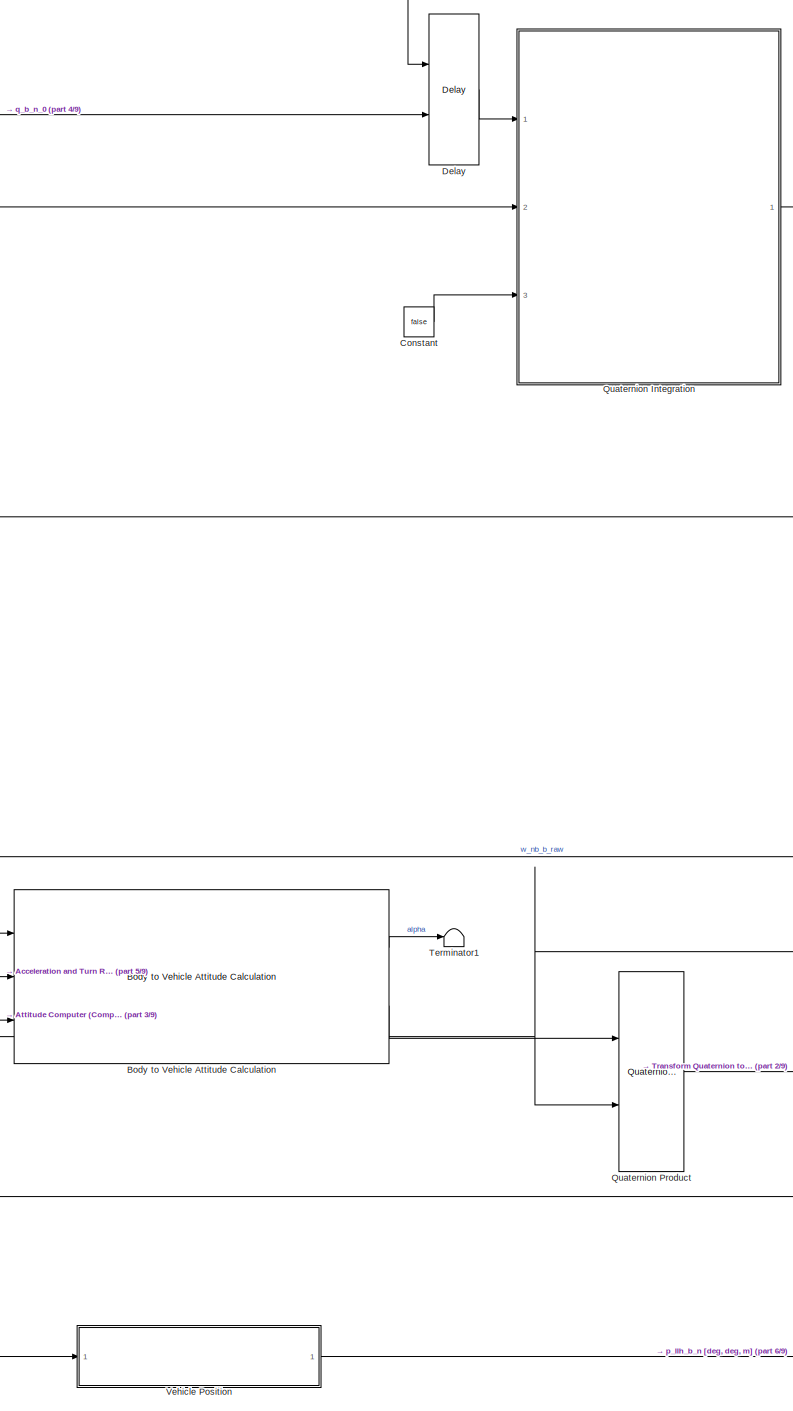
[diagram: Strapdown Calculations/Strapdown Calculations - part 1/9, top right region]
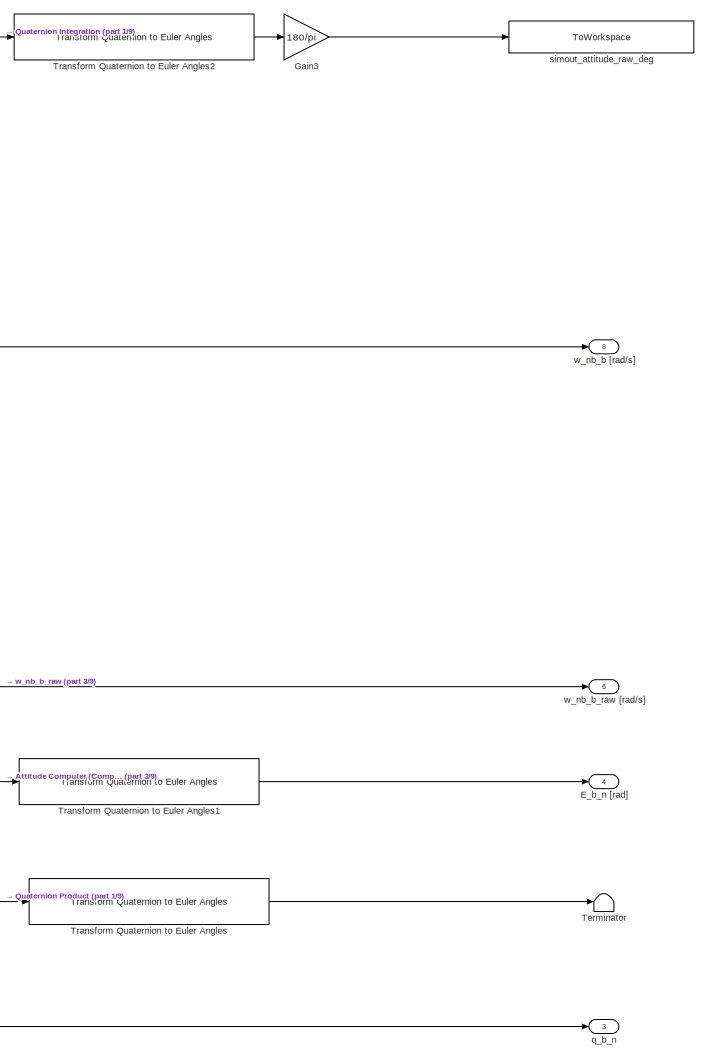
[diagram: Strapdown Calculations/Strapdown Calculations - part 2/9, top right region]
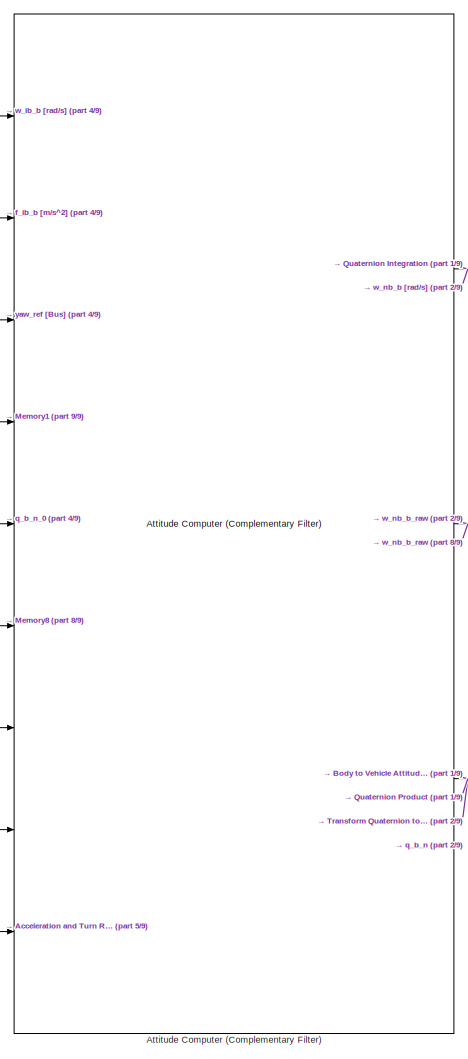
[diagram: Strapdown Calculations/Strapdown Calculations - part 3/9, top left region]
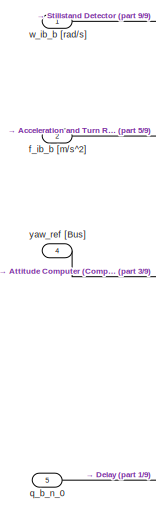
[diagram: Strapdown Calculations/Strapdown Calculations - part 4/9, top left region]
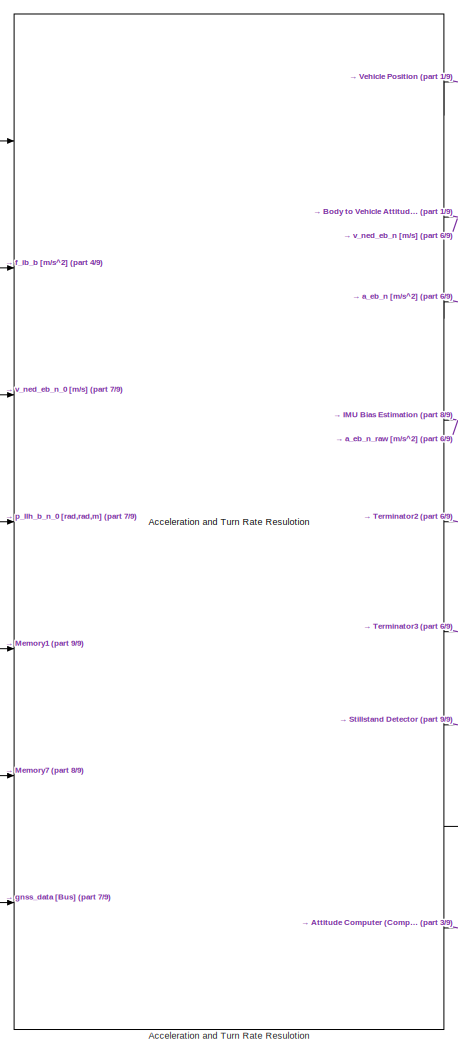
[diagram: Strapdown Calculations/Strapdown Calculations - part 5/9, central region]
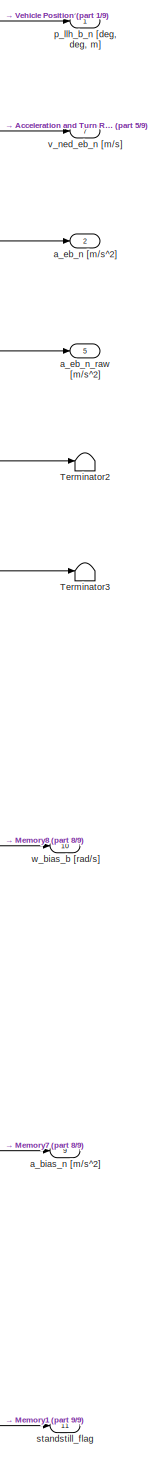
[diagram: Strapdown Calculations/Strapdown Calculations - part 6/9, bottom right region]
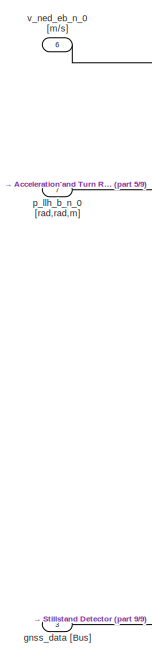
[diagram: Strapdown Calculations/Strapdown Calculations - part 7/9, bottom left region]
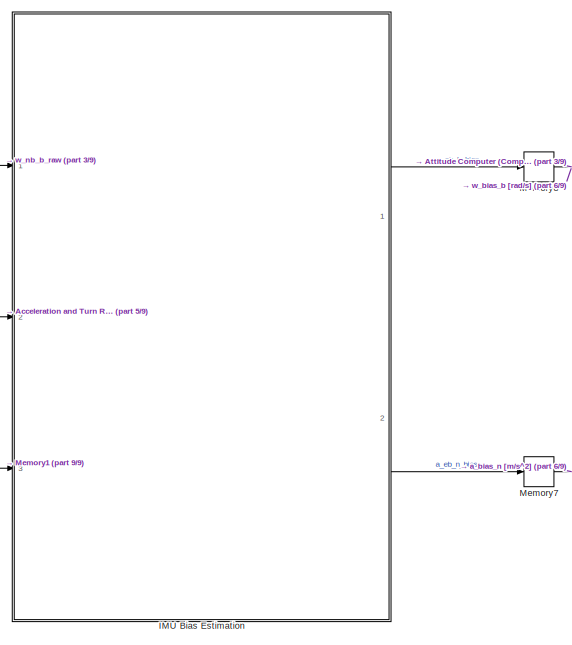
[diagram: Strapdown Calculations/Strapdown Calculations - part 8/9, bottom right region]
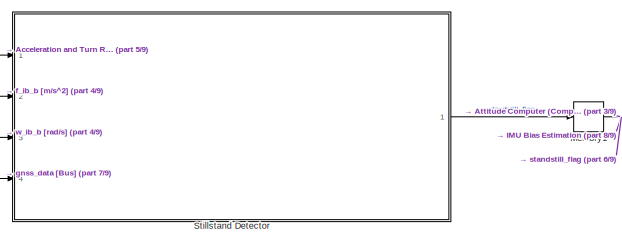
[diagram: Strapdown Calculations/Strapdown Calculations - part 9/9, bottom center region]
BLOCK [SubSystem] Strapdown Calculations/Strapdown Calculations
  Ports = [7, 11]
  RequestExecContextInheritance = off
BLOCK [Reference] Strapdown Calculations/Strapdown Calculations/Acceleration and Turn Rate Resulotion   REF=libMdl_AccIntegrator/Acceleration and Turn Rate Resulotion 
  Ports = [7, 9]
  SourceBlock = libMdl_AccIntegrator/Acceleration and Turn Rate Resulotion
BLOCK [Reference] Strapdown Calculations/Strapdown Calculations/Attitude Computer (Complementary Filter)  REF=libMdl_AttitudeComputer/Attitude Computer
(Complementary Filter)
  AttributesFormatString = see: Valenti et al., "Keeping a Good Attitude: A Quaternion-Based Orientation Filter for IMUs and MARGs", Sensors, pp. 19302-19330, 2015
  Ports = [9, 3]
  SourceBlock = libMdl_AttitudeComputer/Attitude Computer\n(Complementary Filter)
  SourceType = Attitude Computer
BLOCK [Reference] Strapdown Calculations/Strapdown Calculations/Body to Vehicle Attitude Calculation  REF=libMdl_CarriageMisalignment/Body to Vehicle Attitude Calculation
  Ports = [3, 2]
  SourceBlock = libMdl_CarriageMisalignment/Body to Vehicle Attitude Calculation
  SourceType = Waggon Bogie Misalignment Correction
BLOCK [Constant] Strapdown Calculations/Strapdown Calculations/Constant
  Value = false
BLOCK [Delay] Strapdown Calculations/Strapdown Calculations/Delay
  DelayLength = 1
  InitialConditionSource = Input port
  InputPortMap = u0,p4
  Ports = [2, 1]
BLOCK [Outport] Strapdown Calculations/Strapdown Calculations/E_b_n [rad]
  IconDisplay = Port number
  Port = 4
BLOCK [Gain] Strapdown Calculations/Strapdown Calculations/Gain3
  AttributesFormatString = rad2deg
  Gain = 180/pi
  OutDataTypeStr = Inherit: Inherit via internal rule
  ParamDataTypeStr = Inherit: Inherit via internal rule
  SaturateOnIntegerOverflow = off
BLOCK [SubSystem] Strapdown Calculations/Strapdown Calculations/IMU Bias Estimation
  Ports = [3, 2]
  RequestExecContextInheritance = off
BLOCK [Reference] Strapdown Calculations/Strapdown Calculations/IMU Bias Estimation/Acceleration Bias Estimator  REF=libMdl_InsBiasEstimator/Bias Estimator
  Ports = [2, 1]
  SourceBlock = libMdl_InsBiasEstimator/Bias Estimator
  SourceType = INS Bias Estimator
BLOCK [Reference] Strapdown Calculations/Strapdown Calculations/IMU Bias Estimation/Turn Rate Bias Estimator  REF=libMdl_InsBiasEstimator/Bias Estimator
  Ports = [2, 1]
  SourceBlock = libMdl_InsBiasEstimator/Bias Estimator
  SourceType = INS Bias Estimator
BLOCK [Outport] Strapdown Calculations/Strapdown Calculations/IMU Bias Estimation/a_eb_n_bias [m//s^2]
  IconDisplay = Port number
  Port = 2
BLOCK [Inport] Strapdown Calculations/Strapdown Calculations/IMU Bias Estimation/a_eb_n_raw [m//s^2]
  IconDisplay = Port number
  Port = 2
BLOCK [Inport] Strapdown Calculations/Strapdown Calculations/IMU Bias Estimation/stillstand_flag
  IconDisplay = Port number
  Port = 3
BLOCK [Outport] Strapdown Calculations/Strapdown Calculations/IMU Bias Estimation/w_nb_b_bias [rad//s]
  IconDisplay = Port number
BLOCK [Inport] Strapdown Calculations/Strapdown Calculations/IMU Bias Estimation/w_nb_b_raw [rad//s]
  IconDisplay = Port number
BLOCK [Memory] Strapdown Calculations/Strapdown Calculations/Memory1
BLOCK [Memory] Strapdown Calculations/Strapdown Calculations/Memory7
BLOCK [Memory] Strapdown Calculations/Strapdown Calculations/Memory8
BLOCK [SubSystem] Strapdown Calculations/Strapdown Calculations/Quaternion Integration
  AttributesFormatString = See:  D. Titterton and J. Westen, "Strapdown Inertial Navigation Technology", pp. 319-320, IET, 2004
  Ports = [3, 1]
  RequestExecContextInheritance = off
BLOCK [Clock] Strapdown Calculations/Strapdown Calculations/Quaternion Integration/Clock1
BLOCK [Reference] Strapdown Calculations/Strapdown Calculations/Quaternion Integration/Difference  REF=simulink/Discrete/Difference
  Ports = [1, 1]
  SourceBlock = simulink/Discrete/Difference
  SourceProductBaseCode = SL
  SourceProductName = Simulink
  SourceType = Difference
BLOCK [RateTransition] Strapdown Calculations/Strapdown Calculations/Quaternion Integration/Rate Transition
BLOCK [Outport] Strapdown Calculations/Strapdown Calculations/Quaternion Integration/q_b_n
  IconDisplay = Port number
  VectorParamsAs1DForOutWhenUnconnected = off
BLOCK [Inport] Strapdown Calculations/Strapdown Calculations/Quaternion Integration/q_b_n_prev
  IconDisplay = Port number
BLOCK [SubSystem] Strapdown Calculations/Strapdown Calculations/Quaternion Integration/simQuaternionIntegration
  ErrorFcn = Stateflow.Translate.translate
  PermitHierarchicalResolution = ExplicitOnly
  Ports = [4, 1]
  RequestExecContextInheritance = off
  SFBlockType = MATLAB Function
BLOCK [Demux] Strapdown Calculations/Strapdown Calculations/Quaternion Integration/simQuaternionIntegration/ Demux 
  Outputs = 1
  Ports = [1, 1]
BLOCK [S-Function] Strapdown Calculations/Strapdown Calculations/Quaternion Integration/simQuaternionIntegration/ SFunction 
  EnableBusSupport = on
  FunctionName = sf_sfun
  PortCounts = [4 2]
  Ports = [4, 2]
  SFcnIsStateOwnerBlock = off
  SFunctionDeploymentMode = off
  Tag = Stateflow S-Function 11
BLOCK [Terminator] Strapdown Calculations/Strapdown Calculations/Quaternion Integration/simQuaternionIntegration/ Terminator 
BLOCK [Inport] Strapdown Calculations/Strapdown Calculations/Quaternion Integration/simQuaternionIntegration/T
  IconDisplay = Port number
  Port = 4
BLOCK [Outport] Strapdown Calculations/Strapdown Calculations/Quaternion Integration/simQuaternionIntegration/q_b_n
  IconDisplay = Port number
  VectorParamsAs1DForOutWhenUnconnected = off
BLOCK [Inport] Strapdown Calculations/Strapdown Calculations/Quaternion Integration/simQuaternionIntegration/q_b_n_prev
  IconDisplay = Port number
BLOCK [Inport] Strapdown Calculations/Strapdown Calculations/Quaternion Integration/simQuaternionIntegration/standstill_flag
  IconDisplay = Port number
  Port = 3
BLOCK [Inport] Strapdown Calculations/Strapdown Calculations/Quaternion Integration/simQuaternionIntegration/w_nb_b
  IconDisplay = Port number
  Port = 2
BLOCK [Inport] Strapdown Calculations/Strapdown Calculations/Quaternion Integration/standstill_flag
  IconDisplay = Port number
  Port = 3
BLOCK [Inport] Strapdown Calculations/Strapdown Calculations/Quaternion Integration/w_nb_b [rad//s]
  IconDisplay = Port number
  Port = 2
BLOCK [Reference] Strapdown Calculations/Strapdown Calculations/Quaternion Product  REF=libMdl_multQuat/Quaternion Product
  Ports = [2, 1]
  SourceBlock = libMdl_multQuat/Quaternion Product
BLOCK [SubSystem] Strapdown Calculations/Strapdown Calculations/Stillstand Detector
  Ports = [4, 1]
  RequestExecContextInheritance = off
BLOCK [Abs] Strapdown Calculations/Strapdown Calculations/Stillstand Detector/Abs
  SaturateOnIntegerOverflow = off
BLOCK [Sum] Strapdown Calculations/Strapdown Calculations/Stillstand Detector/Add
  InputSameDT = off
  Inputs = +-
  OutDataTypeStr = Inherit: Inherit via internal rule
  Ports = [2, 1]
  SaturateOnIntegerOverflow = off
BLOCK [BusSelector] Strapdown Calculations/Strapdown Calculations/Stillstand Detector/Bus Selector
  OutputAsBus = off
  OutputSignals = gnss_sensor_data_corrected,valid_bit
  Ports = [1, 2]
BLOCK [Constant] Strapdown Calculations/Strapdown Calculations/Stillstand Detector/Constant
  Value = mv_w_energy_standstill_limit
BLOCK [Constant] Strapdown Calculations/Strapdown Calculations/Stillstand Detector/Constant1
  Value = mv_acc_limit
BLOCK [Constant] Strapdown Calculations/Strapdown Calculations/Stillstand Detector/Constant2
  Value = mv_gnss_speed_limit
BLOCK [DiscreteFir] Strapdown Calculations/Strapdown Calculations/Stillstand Detector/Discrete FIR Filter
  Coefficients = ones(1,ceil(mv_E_w_ma_time/sample_time))*1/ceil(mv_E_w_ma_time/sample_time)
  InputPortMap = u0
  OutputPortMap = o0
  Ports = [1, 1]
BLOCK [DiscreteFir] Strapdown Calculations/Strapdown Calculations/Stillstand Detector/Discrete FIR Filter1
  Coefficients = ones(1,ceil(mv_a_e_ma_time/sample_time))*1/ceil(mv_a_e_ma_time/sample_time)
  InputPortMap = u0
  OutputPortMap = o0
  Ports = [1, 1]
BLOCK [Fcn] Strapdown Calculations/Strapdown Calculations/Stillstand Detector/Fcn
  Expr = u(1)^2+u(2)^2+u(3)^2
BLOCK [Fcn] Strapdown Calculations/Strapdown Calculations/Stillstand Detector/Fcn1
  Expr = sqrt(u(1)^2+u(2)^2+u(3)^2)
BLOCK [Fcn] Strapdown Calculations/Strapdown Calculations/Stillstand Detector/Fcn2
  Expr = sqrt(u(1)^2+u(2)^2+u(3)^2)
BLOCK [Fcn] Strapdown Calculations/Strapdown Calculations/Stillstand Detector/Fcn3
  Expr = sqrt(u(1)^2+u(2)^2)
BLOCK [RelationalOperator] Strapdown Calculations/Strapdown Calculations/Stillstand Detector/GreaterThan
  InputSameDT = off
  Operator = <
  OutDataTypeStr = boolean
  Ports = [2, 1]
  RndMeth = Simplest
BLOCK [RelationalOperator] Strapdown Calculations/Strapdown Calculations/Stillstand Detector/GreaterThan1
  InputSameDT = off
  Operator = <
  OutDataTypeStr = boolean
  Ports = [2, 1]
  RndMeth = Simplest
BLOCK [RelationalOperator] Strapdown Calculations/Strapdown Calculations/Stillstand Detector/GreaterThan2
  InputSameDT = off
  Operator = >
  OutDataTypeStr = boolean
  Ports = [2, 1]
  RndMeth = Simplest
BLOCK [Logic] Strapdown Calculations/Strapdown Calculations/Stillstand Detector/Logical Operator
  AllPortsSameDT = off
  Inputs = 3
  OutDataTypeStr = boolean
  Ports = [3, 1]
BLOCK [Logic] Strapdown Calculations/Strapdown Calculations/Stillstand Detector/Logical Operator1
  AllPortsSameDT = off
  OutDataTypeStr = boolean
  Ports = [2, 1]
BLOCK [Logic] Strapdown Calculations/Strapdown Calculations/Stillstand Detector/Logical Operator2
  AllPortsSameDT = off
  Operator = NOT
  OutDataTypeStr = boolean
  Ports = [1, 1]
BLOCK [RateTransition] Strapdown Calculations/Strapdown Calculations/Stillstand Detector/RT
BLOCK [Selector] Strapdown Calculations/Strapdown Calculations/Stillstand Detector/Selector
  IndexOptions = Index vector (dialog)
  Indices = [4:6]
  InputPortWidth = 7
  OutputSizes = 1
  Ports = [1, 1]
BLOCK [ZeroOrderHold] Strapdown Calculations/Strapdown Calculations/Stillstand Detector/Zero-Order Hold
  SampleTime = gnss_sample_time
BLOCK [Inport] Strapdown Calculations/Strapdown Calculations/Stillstand Detector/f_ib_b [m//s^2]
  IconDisplay = Port number
  Port = 2
BLOCK [Inport] Strapdown Calculations/Strapdown Calculations/Stillstand Detector/f_local_gravity [m//s^2]
  IconDisplay = Port number
  SampleTime = sample_time
BLOCK [Inport] Strapdown Calculations/Strapdown Calculations/Stillstand Detector/gnss_data [Bus]
  IconDisplay = Port number
  Port = 4
BLOCK [ToWorkspace] Strapdown Calculations/Strapdown Calculations/Stillstand Detector/simout_a_e
  FixptAsFi = on
  MaxDataPoints = inf
  Ports = [1]
  SampleTime = -1
  SaveFormat = Timeseries
  VariableName = simout_a_e
BLOCK [ToWorkspace] Strapdown Calculations/Strapdown Calculations/Stillstand Detector/simout_w_energy
  FixptAsFi = on
  MaxDataPoints = inf
  Ports = [1]
  SampleTime = -1
  SaveFormat = Timeseries
  VariableName = simout_w_energy
BLOCK [Outport] Strapdown Calculations/Strapdown Calculations/Stillstand Detector/standstill_flag
  IconDisplay = Port number
BLOCK [Inport] Strapdown Calculations/Strapdown Calculations/Stillstand Detector/w_ib_b [rad//s]
  IconDisplay = Port number
  Port = 3
BLOCK [Terminator] Strapdown Calculations/Strapdown Calculations/Terminator
BLOCK [Terminator] Strapdown Calculations/Strapdown Calculations/Terminator1
BLOCK [Terminator] Strapdown Calculations/Strapdown Calculations/Terminator2
BLOCK [Terminator] Strapdown Calculations/Strapdown Calculations/Terminator3
BLOCK [Reference] Strapdown Calculations/Strapdown Calculations/Transform Quaternion to Euler Angles  REF=libMdl_quatToEuler/Transform Quaternion to Euler Angles
  Ports = [1, 1]
  SourceBlock = libMdl_quatToEuler/Transform Quaternion to Euler Angles
BLOCK [Reference] Strapdown Calculations/Strapdown Calculations/Transform Quaternion to Euler Angles1  REF=libMdl_quatToEuler/Transform Quaternion to Euler Angles
  Ports = [1, 1]
  SourceBlock = libMdl_quatToEuler/Transform Quaternion to Euler Angles
BLOCK [Reference] Strapdown Calculations/Strapdown Calculations/Transform Quaternion to Euler Angles2  REF=libMdl_quatToEuler/Transform Quaternion to Euler Angles
  Ports = [1, 1]
  SourceBlock = libMdl_quatToEuler/Transform Quaternion to Euler Angles
BLOCK [SubSystem] Strapdown Calculations/Strapdown Calculations/Vehicle Position
  Ports = [1, 1]
  RequestExecContextInheritance = off
BLOCK [Mux] Strapdown Calculations/Strapdown Calculations/Vehicle Position/Mux
  DisplayOption = bar
  Inputs = 2
  Ports = [2, 1]
BLOCK [Selector] Strapdown Calculations/Strapdown Calculations/Vehicle Position/Selector
  IndexOptions = Index vector (dialog)
  Indices = [1 2]
  InputPortWidth = 3
  OutputSizes = 1
  Ports = [1, 1]
BLOCK [Selector] Strapdown Calculations/Strapdown Calculations/Vehicle Position/Selector1
  IndexOptions = Index vector (dialog)
  Indices = 3
  InputPortWidth = 3
  OutputSizes = 1
  Ports = [1, 1]
BLOCK [Outport] Strapdown Calculations/Strapdown Calculations/Vehicle Position/p_llh_b_n [deg, deg, m]
  IconDisplay = Port number
  VectorParamsAs1DForOutWhenUnconnected = off
BLOCK [Inport] Strapdown Calculations/Strapdown Calculations/Vehicle Position/p_llh_b_n [rad, rad, m]
  IconDisplay = Port number
BLOCK [Gain] Strapdown Calculations/Strapdown Calculations/Vehicle Position/radToDeg
  Gain = 180/pi
  OutDataTypeStr = Inherit: Inherit via internal rule
  ParamDataTypeStr = Inherit: Inherit via internal rule
  SaturateOnIntegerOverflow = off
BLOCK [Outport] Strapdown Calculations/Strapdown Calculations/a_bias_n [m//s^2]
  IconDisplay = Port number
  Port = 9
BLOCK [Outport] Strapdown Calculations/Strapdown Calculations/a_eb_n [m//s^2]
  IconDisplay = Port number
  Port = 2
BLOCK [Outport] Strapdown Calculations/Strapdown Calculations/a_eb_n_raw [m//s^2]
  IconDisplay = Port number
  Port = 5
BLOCK [Inport] Strapdown Calculations/Strapdown Calculations/f_ib_b [m//s^2]
  IconDisplay = Port number
  Port = 2
BLOCK [Inport] Strapdown Calculations/Strapdown Calculations/gnss_data [Bus]
  IconDisplay = Port number
  Port = 3
BLOCK [Outport] Strapdown Calculations/Strapdown Calculations/p_llh_b_n [deg, deg, m]
  IconDisplay = Port number
BLOCK [Inport] Strapdown Calculations/Strapdown Calculations/p_llh_b_n_0 [rad,rad,m]
  IconDisplay = Port number
  Port = 7
BLOCK [Outport] Strapdown Calculations/Strapdown Calculations/q_b_n
  IconDisplay = Port number
  Port = 3
BLOCK [Inport] Strapdown Calculations/Strapdown Calculations/q_b_n_0
  IconDisplay = Port number
  Port = 5
BLOCK [ToWorkspace] Strapdown Calculations/Strapdown Calculations/simout_attitude_raw_deg
  FixptAsFi = on
  MaxDataPoints = inf
  Ports = [1]
  SampleTime = -1
  SaveFormat = Timeseries
  VariableName = simout_attitude_raw_deg
BLOCK [Outport] Strapdown Calculations/Strapdown Calculations/standstill_flag
  IconDisplay = Port number
  Port = 11
BLOCK [Outport] Strapdown Calculations/Strapdown Calculations/v_ned_eb_n [m//s]
  IconDisplay = Port number
  Port = 7
BLOCK [Inport] Strapdown Calculations/Strapdown Calculations/v_ned_eb_n_0 [m//s]
  IconDisplay = Port number
  Port = 6
BLOCK [Outport] Strapdown Calculations/Strapdown Calculations/w_bias_b [rad//s]
  IconDisplay = Port number
  Port = 10
BLOCK [Inport] Strapdown Calculations/Strapdown Calculations/w_ib_b [rad//s]
  IconDisplay = Port number
BLOCK [Outport] Strapdown Calculations/Strapdown Calculations/w_nb_b [rad//s]
  IconDisplay = Port number
  Port = 8
BLOCK [Outport] Strapdown Calculations/Strapdown Calculations/w_nb_b_raw [rad//s]
  IconDisplay = Port number
  Port = 6
BLOCK [Inport] Strapdown Calculations/Strapdown Calculations/yaw_ref [Bus]
  IconDisplay = Port number
  Port = 4
BLOCK [Terminator] Strapdown Calculations/Terminator
BLOCK [Terminator] Strapdown Calculations/Terminator1
BLOCK [Terminator] Strapdown Calculations/Terminator2
BLOCK [Terminator] Strapdown Calculations/Terminator3
BLOCK [Terminator] Strapdown Calculations/Terminator5
BLOCK [Terminator] Strapdown Calculations/Terminator7
BLOCK [Terminator] Strapdown Calculations/Terminator8
BLOCK [Terminator] Strapdown Calculations/Terminator9
BLOCK [Reference] Strapdown Calculations/Transform Vector1  REF=libMdl_transformVect/Transform Vector
  Ports = [2, 1]
  SourceBlock = libMdl_transformVect/Transform Vector
BLOCK [Outport] Strapdown Calculations/a_eb_n [m//s^2]
  IconDisplay = Port number
  Port = 3
BLOCK [Outport] Strapdown Calculations/attitude_deg
  IconDisplay = Port number
  Port = 5
BLOCK [Inport] Strapdown Calculations/f_is_s [Bus]
  IconDisplay = Port number
  Port = 2
BLOCK [Inport] Strapdown Calculations/gnss_data [Bus]
  IconDisplay = Port number
  Port = 3
BLOCK [Outport] Strapdown Calculations/gnss_data_corrected [Bus]
  IconDisplay = Port number
  Port = 2
BLOCK [Inport] Strapdown Calculations/p_llh_b_n_0 [rad,rad,m]
  IconDisplay = Port number
  Port = 6
BLOCK [Inport] Strapdown Calculations/q_b_n_0
  IconDisplay = Port number
  Port = 4
BLOCK [ToWorkspace] Strapdown Calculations/simout_a_bias_b
  FixptAsFi = on
  MaxDataPoints = inf
  Ports = [1]
  SampleTime = -1
  SaveFormat = Timeseries
  VariableName = simout_a_bias_b
BLOCK [ToWorkspace] Strapdown Calculations/simout_a_eb_n
  FixptAsFi = on
  MaxDataPoints = inf
  Ports = [1]
  SampleTime = -1
  SaveFormat = Timeseries
  VariableName = simout_a_eb_n
BLOCK [ToWorkspace] Strapdown Calculations/simout_a_ib_b
  FixptAsFi = on
  MaxDataPoints = inf
  Ports = [1]
  SampleTime = -1
  SaveFormat = Timeseries
  VariableName = simout_a_ib_b
BLOCK [ToWorkspace] Strapdown Calculations/simout_attitude_deg
  FixptAsFi = on
  MaxDataPoints = inf
  Ports = [1]
  SampleTime = -1
  SaveFormat = Timeseries
  VariableName = simout_attitude_deg
BLOCK [ToWorkspace] Strapdown Calculations/simout_gnss
  FixptAsFi = on
  MaxDataPoints = inf
  Ports = [1]
  SampleTime = -1
  SaveFormat = Timeseries
  VariableName = simout_gnss
BLOCK [ToWorkspace] Strapdown Calculations/simout_q_b_n
  FixptAsFi = on
  MaxDataPoints = inf
  Ports = [1]
  SampleTime = -1
  SaveFormat = Timeseries
  VariableName = simout_q_b_n
BLOCK [ToWorkspace] Strapdown Calculations/simout_stillstand_flag
  FixptAsFi = on
  MaxDataPoints = inf
  Ports = [1]
  SampleTime = -1
  SaveFormat = Timeseries
  VariableName = simout_stillstand_flag
BLOCK [ToWorkspace] Strapdown Calculations/simout_v_ned_n
  FixptAsFi = on
  MaxDataPoints = inf
  Ports = [1]
  SampleTime = -1
  SaveFormat = Timeseries
  VariableName = simout_v_ned_n
BLOCK [ToWorkspace] Strapdown Calculations/simout_w_bias_b
  FixptAsFi = on
  MaxDataPoints = inf
  Ports = [1]
  SampleTime = -1
  SaveFormat = Timeseries
  VariableName = simout_w_bias_b
BLOCK [ToWorkspace] Strapdown Calculations/simout_w_ib_b
  FixptAsFi = on
  MaxDataPoints = inf
  Ports = [1]
  SampleTime = -1
  SaveFormat = Timeseries
  VariableName = simout_w_ib_b
BLOCK [ToWorkspace] Strapdown Calculations/simout_w_nb_b
  FixptAsFi = on
  MaxDataPoints = inf
  Ports = [1]
  SampleTime = -1
  SaveFormat = Timeseries
  VariableName = simout_w_nb_b
BLOCK [Outport] Strapdown Calculations/standstill_flag
  IconDisplay = Port number
BLOCK [Inport] Strapdown Calculations/v_ned_eb_n_0 [m//s]
  IconDisplay = Port number
  Port = 5
BLOCK [Inport] Strapdown Calculations/w_is_s [Bus]
  IconDisplay = Port number
BLOCK [Outport] Strapdown Calculations/w_nb_b [rad//s]
  IconDisplay = Port number
  Port = 4
BLOCK [Inport] Strapdown Calculations/yaw_ref [Bus]
  IconDisplay = Port number
  Port = 7
BLOCK [Terminator] Terminator
BLOCK [Terminator] Terminator1
BLOCK [Terminator] Terminator3
BLOCK [Reference] Turn Rates  REF=libMdl_RecordedData/Load Sensor Data
  Ports = [0, 1]
  SourceBlock = libMdl_RecordedData/Load Sensor Data
  SourceType = Load Sensor Data From Workspace
BLOCK [Constant] p_llh_n_0
  Value = p_llh_n_0_rad
BLOCK [Constant] q_b_n_0
  Value = q_b_n_0
BLOCK [Constant] v_ned_eb_n_0
  Value = v_ned_eb_n_0
LINE Accelerations:1 -> Strapdown Calculations:2
LINE Constant:1 -> Localization Filter:7
LINE GNSS Uncertainties:1 -> Localization Filter:6
LINE GNSS:1 -> Strapdown Calculations:3
LINE Localization Filter/Abs:1 -> Localization Filter/Mux:4
LINE Localization Filter/Demux:1 -> Localization Filter/Mux:1
LINE Localization Filter/Demux:2 -> Localization Filter/Mux:2
LINE Localization Filter/Demux:3 -> Localization Filter/Mux:3
LINE Localization Filter/Demux:4 -> Localization Filter/Abs:1
LINE Localization Filter/Demux:5 -> Localization Filter/Mux:5
LINE Localization Filter/Demux:6 -> Localization Filter/MATLAB Function2:1
LINE Localization Filter/Demux:7 -> Localization Filter/Mux:7
LINE Localization Filter/GNSS Heading Selector/Bus Creator:1 -> Localization Filter/GNSS Heading Selector/yaw_ref [Bus]:1
LINE Localization Filter/GNSS Heading Selector/Constant:1 -> Localization Filter/GNSS Heading Selector/Bus Creator:2
NET Localization Filter/GNSS Heading Selector/Delay:1 -> Localization Filter/GNSS Heading Selector/Bus Creator:1, Localization Filter/GNSS Heading Selector/Gain:1
LINE Localization Filter/GNSS Heading Selector/Gain:1 -> Localization Filter/GNSS Heading Selector/Terminator:1
LINE Localization Filter/GNSS Heading Selector/Psi_0 [rad]:1 -> Localization Filter/GNSS Heading Selector/Delay:2
LINE Localization Filter/GNSS Heading Selector/Selector:1 -> Localization Filter/GNSS Heading Selector/Delay:1
LINE Localization Filter/GNSS Heading Selector/x_imm [vec]:1 -> Localization Filter/GNSS Heading Selector/Selector:1
LINE Localization Filter/GNSS Heading Selector:1 -> Localization Filter/yaw_ref [Bus]:1
LINE Localization Filter/IC:1 -> Localization Filter/Logical Operator:1
NET Localization Filter/InteractingMultipleModelFilter:1 -> Localization Filter/Demux:1, Localization Filter/GNSS Heading Selector:1, Localization Filter/Memory:1, Localization Filter/Parameter Identification, Localization Correction and Map Building:2, Localization Filter/simout_imm_x:1, Localization Filter/x_imm [vec]:1
NET Localization Filter/InteractingMultipleModelFilter:2 -> Localization Filter/Memory1:1, Localization Filter/P_imm [mat]:1, Localization Filter/Parameter Identification, Localization Correction and Map Building:3, Localization Filter/simout_imm_P:1
NET Localization Filter/InteractingMultipleModelFilter:3 -> Localization Filter/Parameter Identification, Localization Correction and Map Building:4, Localization Filter/mu_imm [vec]:1, Localization Filter/simout_imm_mu:1
LINE Localization Filter/InteractingMultipleModelFilter:4 -> Localization Filter/Parameter Identification, Localization Correction and Map Building:1
NET Localization Filter/Kalman Filter:1 -> Localization Filter/Memory2:1, Localization Filter/simout_ekf_x:1
NET Localization Filter/Kalman Filter:2 -> Localization Filter/Memory3:1, Localization Filter/simout_ekf_P:1
LINE Localization Filter/Logical Operator:1 -> Localization Filter/Rate Transition:1
LINE Localization Filter/MATLAB Function1:1 -> Localization Filter/InteractingMultipleModelFilter:7
LINE Localization Filter/MATLAB Function2:1 -> Localization Filter/Mux:6
LINE Localization Filter/MATLAB Function:1 -> Localization Filter/InteractingMultipleModelFilter:6
LINE Localization Filter/Memory1:1 -> Localization Filter/MATLAB Function1:1
LINE Localization Filter/Memory2:1 -> Localization Filter/Kalman Filter:6
LINE Localization Filter/Memory3:1 -> Localization Filter/Kalman Filter:7
LINE Localization Filter/Memory:1 -> Localization Filter/MATLAB Function:1
LINE Localization Filter/Mux:1 -> Localization Filter/Terminator:1
LINE Localization Filter/Parameter Identification, Localization Correction and Map Building/Correction Data Preparation/Data Preparation:1 -> Localization Filter/Parameter Identification, Localization Correction and Map Building/Correction Data Preparation/geometry:1
LINE Localization Filter/Parameter Identification, Localization Correction and Map Building/Correction Data Preparation/Data Preparation:2 -> Localization Filter/Parameter Identification, Localization Correction and Map Building/Correction Data Preparation/reset_flag:1
LINE Localization Filter/Parameter Identification, Localization Correction and Map Building/Correction Data Preparation/Data Preparation:3 -> Localization Filter/Parameter Identification, Localization Correction and Map Building/Correction Data Preparation/s_0 [vec]:1
LINE Localization Filter/Parameter Identification, Localization Correction and Map Building/Correction Data Preparation/Data Preparation:4 -> Localization Filter/Parameter Identification, Localization Correction and Map Building/Correction Data Preparation/P_s_0 [mat]:1
LINE Localization Filter/Parameter Identification, Localization Correction and Map Building/Correction Data Preparation/Data Preparation:5 -> Localization Filter/Parameter Identification, Localization Correction and Map Building/Correction Data Preparation/z_s [vec]:1
LINE Localization Filter/Parameter Identification, Localization Correction and Map Building/Correction Data Preparation/Data Preparation:6 -> Localization Filter/Parameter Identification, Localization Correction and Map Building/Correction Data Preparation/R_s [mat]:1
LINE Localization Filter/Parameter Identification, Localization Correction and Map Building/Correction Data Preparation/Data Preparation:7 -> Localization Filter/Parameter Identification, Localization Correction and Map Building/Correction Data Preparation/l_old [vec]:1
LINE Localization Filter/Parameter Identification, Localization Correction and Map Building/Correction Data Preparation/Data Preparation:8 -> Localization Filter/Parameter Identification, Localization Correction and Map Building/Correction Data Preparation/gamma [rad]:1
LINE Localization Filter/Parameter Identification, Localization Correction and Map Building/Correction Data Preparation/P_imm [mat]:1 -> Localization Filter/Parameter Identification, Localization Correction and Map Building/Correction Data Preparation/Data Preparation:3
LINE Localization Filter/Parameter Identification, Localization Correction and Map Building/Correction Data Preparation/R [mat]:1 -> Localization Filter/Parameter Identification, Localization Correction and Map Building/Correction Data Preparation/Data Preparation:6
LINE Localization Filter/Parameter Identification, Localization Correction and Map Building/Correction Data Preparation/d_bogies [m]:1 -> Localization Filter/Parameter Identification, Localization Correction and Map Building/Correction Data Preparation/Data Preparation:7
LINE Localization Filter/Parameter Identification, Localization Correction and Map Building/Correction Data Preparation/enable:1 -> Localization Filter/Parameter Identification, Localization Correction and Map Building/Correction Data Preparation/Data Preparation:1
LINE Localization Filter/Parameter Identification, Localization Correction and Map Building/Correction Data Preparation/mu [vec]:1 -> Localization Filter/Parameter Identification, Localization Correction and Map Building/Correction Data Preparation/Data Preparation:4
LINE Localization Filter/Parameter Identification, Localization Correction and Map Building/Correction Data Preparation/v_min_tgc [vec]:1 -> Localization Filter/Parameter Identification, Localization Correction and Map Building/Correction Data Preparation/Data Preparation:8
LINE Localization Filter/Parameter Identification, Localization Correction and Map Building/Correction Data Preparation/x_imm [vec]:1 -> Localization Filter/Parameter Identification, Localization Correction and Map Building/Correction Data Preparation/Data Preparation:2
LINE Localization Filter/Parameter Identification, Localization Correction and Map Building/Correction Data Preparation/z [vec]:1 -> Localization Filter/Parameter Identification, Localization Correction and Map Building/Correction Data Preparation/Data Preparation:5
NET Localization Filter/Parameter Identification, Localization Correction and Map Building/Correction Data Preparation:1 -> Localization Filter/Parameter Identification, Localization Correction and Map Building/Correction:4, Localization Filter/Parameter Identification, Localization Correction and Map Building/Map Building:1
NET Localization Filter/Parameter Identification, Localization Correction and Map Building/Correction Data Preparation:2 -> Localization Filter/Parameter Identification, Localization Correction and Map Building/Correction:5, Localization Filter/Parameter Identification, Localization Correction and Map Building/Map Building:2
LINE Localization Filter/Parameter Identification, Localization Correction and Map Building/Correction Data Preparation:3 -> Localization Filter/Parameter Identification, Localization Correction and Map Building/Correction:6
LINE Localization Filter/Parameter Identification, Localization Correction and Map Building/Correction Data Preparation:4 -> Localization Filter/Parameter Identification, Localization Correction and Map Building/Correction:7
LINE Localization Filter/Parameter Identification, Localization Correction and Map Building/Correction Data Preparation:5 -> Localization Filter/Parameter Identification, Localization Correction and Map Building/Correction:8
LINE Localization Filter/Parameter Identification, Localization Correction and Map Building/Correction Data Preparation:6 -> Localization Filter/Parameter Identification, Localization Correction and Map Building/Correction:9
LINE Localization Filter/Parameter Identification, Localization Correction and Map Building/Correction Data Preparation:7 -> Localization Filter/Parameter Identification, Localization Correction and Map Building/Map Building:5
LINE Localization Filter/Parameter Identification, Localization Correction and Map Building/Correction Data Preparation:8 -> Localization Filter/Parameter Identification, Localization Correction and Map Building/Gain:1
LINE Localization Filter/Parameter Identification, Localization Correction and Map Building/Correction/Detect Change:1 -> Localization Filter/Parameter Identification, Localization Correction and Map Building/Correction/Logical Operator:1
LINE Localization Filter/Parameter Identification, Localization Correction and Map Building/Correction/Logical Operator:1 -> Localization Filter/Parameter Identification, Localization Correction and Map Building/Correction/MATLAB Function:2
LINE Localization Filter/Parameter Identification, Localization Correction and Map Building/Correction/MATLAB Function:1 -> Localization Filter/Parameter Identification, Localization Correction and Map Building/Correction/s [vec]:1
LINE Localization Filter/Parameter Identification, Localization Correction and Map Building/Correction/MATLAB Function:2 -> Localization Filter/Parameter Identification, Localization Correction and Map Building/Correction/P_s [mat]:1
LINE Localization Filter/Parameter Identification, Localization Correction and Map Building/Correction/MATLAB Function:3 -> Localization Filter/Parameter Identification, Localization Correction and Map Building/Correction/o [vec]:1
LINE Localization Filter/Parameter Identification, Localization Correction and Map Building/Correction/MATLAB Function:4 -> Localization Filter/Parameter Identification, Localization Correction and Map Building/Correction/P_o [mat]:1
LINE Localization Filter/Parameter Identification, Localization Correction and Map Building/Correction/P_s_0 [mat]:1 -> Localization Filter/Parameter Identification, Localization Correction and Map Building/Correction/MATLAB Function:6
LINE Localization Filter/Parameter Identification, Localization Correction and Map Building/Correction/P_x_imm [mat]:1 -> Localization Filter/Parameter Identification, Localization Correction and Map Building/Correction/MATLAB Function:4
LINE Localization Filter/Parameter Identification, Localization Correction and Map Building/Correction/Q_arc:1 -> Localization Filter/Parameter Identification, Localization Correction and Map Building/Correction/MATLAB Function:10
LINE Localization Filter/Parameter Identification, Localization Correction and Map Building/Correction/Q_straight:1 -> Localization Filter/Parameter Identification, Localization Correction and Map Building/Correction/MATLAB Function:9
LINE Localization Filter/Parameter Identification, Localization Correction and Map Building/Correction/R_s [mat]:1 -> Localization Filter/Parameter Identification, Localization Correction and Map Building/Correction/MATLAB Function:8
NET Localization Filter/Parameter Identification, Localization Correction and Map Building/Correction/enable:1 -> Localization Filter/Parameter Identification, Localization Correction and Map Building/Correction/Detect Change:1, Localization Filter/Parameter Identification, Localization Correction and Map Building/Correction/MATLAB Function:1
LINE Localization Filter/Parameter Identification, Localization Correction and Map Building/Correction/geometry:1 -> Localization Filter/Parameter Identification, Localization Correction and Map Building/Correction/MATLAB Function:11
LINE Localization Filter/Parameter Identification, Localization Correction and Map Building/Correction/reset_flag:1 -> Localization Filter/Parameter Identification, Localization Correction and Map Building/Correction/Logical Operator:2
LINE Localization Filter/Parameter Identification, Localization Correction and Map Building/Correction/s_0 [vec]:1 -> Localization Filter/Parameter Identification, Localization Correction and Map Building/Correction/MATLAB Function:5
LINE Localization Filter/Parameter Identification, Localization Correction and Map Building/Correction/x_imm [vec]:1 -> Localization Filter/Parameter Identification, Localization Correction and Map Building/Correction/MATLAB Function:3
LINE Localization Filter/Parameter Identification, Localization Correction and Map Building/Correction/z_s [vec]:1 -> Localization Filter/Parameter Identification, Localization Correction and Map Building/Correction/MATLAB Function:7
NET Localization Filter/Parameter Identification, Localization Correction and Map Building/Correction:1 -> Localization Filter/Parameter Identification, Localization Correction and Map Building/Map Building:3, Localization Filter/Parameter Identification, Localization Correction and Map Building/s [vec]:1
NET Localization Filter/Parameter Identification, Localization Correction and Map Building/Correction:2 -> Localization Filter/Parameter Identification, Localization Correction and Map Building/Map Building:4, Localization Filter/Parameter Identification, Localization Correction and Map Building/P_s [mat]:1
LINE Localization Filter/Parameter Identification, Localization Correction and Map Building/Correction:3 -> Localization Filter/Parameter Identification, Localization Correction and Map Building/o [vec]:1
LINE Localization Filter/Parameter Identification, Localization Correction and Map Building/Correction:4 -> Localization Filter/Parameter Identification, Localization Correction and Map Building/P_o [mat]:1
LINE Localization Filter/Parameter Identification, Localization Correction and Map Building/Gain:1 -> Localization Filter/Parameter Identification, Localization Correction and Map Building/Terminator1:1
LINE Localization Filter/Parameter Identification, Localization Correction and Map Building/Map Building/P_s [mat]:1 -> Localization Filter/Parameter Identification, Localization Correction and Map Building/Map Building/Railway Map Builder:4
LINE Localization Filter/Parameter Identification, Localization Correction and Map Building/Map Building/Railway Map Builder:1 -> Localization Filter/Parameter Identification, Localization Correction and Map Building/Map Building/topology:1
LINE Localization Filter/Parameter Identification, Localization Correction and Map Building/Map Building/Railway Map Builder:2 -> Localization Filter/Parameter Identification, Localization Correction and Map Building/Map Building/track_start_points:1
LINE Localization Filter/Parameter Identification, Localization Correction and Map Building/Map Building/Railway Map Builder:3 -> Localization Filter/Parameter Identification, Localization Correction and Map Building/Map Building/P_track_start_points:1
LINE Localization Filter/Parameter Identification, Localization Correction and Map Building/Map Building/Railway Map Builder:4 -> Localization Filter/Parameter Identification, Localization Correction and Map Building/Map Building/track_maps:1
LINE Localization Filter/Parameter Identification, Localization Correction and Map Building/Map Building/Railway Map Builder:5 -> Localization Filter/Parameter Identification, Localization Correction and Map Building/Map Building/P_track_maps:1
LINE Localization Filter/Parameter Identification, Localization Correction and Map Building/Map Building/Railway Map Builder:6 -> Localization Filter/Parameter Identification, Localization Correction and Map Building/Map Building/optimization_data_selector:1
LINE Localization Filter/Parameter Identification, Localization Correction and Map Building/Map Building/geometry:1 -> Localization Filter/Parameter Identification, Localization Correction and Map Building/Map Building/Railway Map Builder:1
LINE Localization Filter/Parameter Identification, Localization Correction and Map Building/Map Building/l_old [vec]:1 -> Localization Filter/Parameter Identification, Localization Correction and Map Building/Map Building/Railway Map Builder:5
LINE Localization Filter/Parameter Identification, Localization Correction and Map Building/Map Building/reset_flag:1 -> Localization Filter/Parameter Identification, Localization Correction and Map Building/Map Building/Railway Map Builder:2
LINE Localization Filter/Parameter Identification, Localization Correction and Map Building/Map Building/s [vec]:1 -> Localization Filter/Parameter Identification, Localization Correction and Map Building/Map Building/Railway Map Builder:3
NET Localization Filter/Parameter Identification, Localization Correction and Map Building/Map Building:1 -> Localization Filter/Parameter Identification, Localization Correction and Map Building/Terminator5:1, Localization Filter/Parameter Identification, Localization Correction and Map Building/simout_topology:1
NET Localization Filter/Parameter Identification, Localization Correction and Map Building/Map Building:2 -> Localization Filter/Parameter Identification, Localization Correction and Map Building/Terminator6:1, Localization Filter/Parameter Identification, Localization Correction and Map Building/simout_track_start_points:1
NET Localization Filter/Parameter Identification, Localization Correction and Map Building/Map Building:3 -> Localization Filter/Parameter Identification, Localization Correction and Map Building/Terminator2:1, Localization Filter/Parameter Identification, Localization Correction and Map Building/simout_P_track_start_points:1
NET Localization Filter/Parameter Identification, Localization Correction and Map Building/Map Building:4 -> Localization Filter/Parameter Identification, Localization Correction and Map Building/Terminator7:1, Localization Filter/Parameter Identification, Localization Correction and Map Building/simout_track_maps:1
NET Localization Filter/Parameter Identification, Localization Correction and Map Building/Map Building:5 -> Localization Filter/Parameter Identification, Localization Correction and Map Building/Terminator8:1, Localization Filter/Parameter Identification, Localization Correction and Map Building/simout_P_track_maps:1
NET Localization Filter/Parameter Identification, Localization Correction and Map Building/Map Building:6 -> Localization Filter/Parameter Identification, Localization Correction and Map Building/Terminator9:1, Localization Filter/Parameter Identification, Localization Correction and Map Building/simout_optimization_data_selector:1
NET Localization Filter/Parameter Identification, Localization Correction and Map Building/P_imm [mat]:1 -> Localization Filter/Parameter Identification, Localization Correction and Map Building/Correction Data Preparation:3, Localization Filter/Parameter Identification, Localization Correction and Map Building/Correction:3
LINE Localization Filter/Parameter Identification, Localization Correction and Map Building/R [mat]:1 -> Localization Filter/Parameter Identification, Localization Correction and Map Building/Correction Data Preparation:7
LINE Localization Filter/Parameter Identification, Localization Correction and Map Building/d_bogies:1 -> Localization Filter/Parameter Identification, Localization Correction and Map Building/Correction Data Preparation:5
NET Localization Filter/Parameter Identification, Localization Correction and Map Building/enable:1 -> Localization Filter/Parameter Identification, Localization Correction and Map Building/Correction Data Preparation:1, Localization Filter/Parameter Identification, Localization Correction and Map Building/Correction:1
LINE Localization Filter/Parameter Identification, Localization Correction and Map Building/mu_imm [vec]:1 -> Localization Filter/Parameter Identification, Localization Correction and Map Building/Correction Data Preparation:4
LINE Localization Filter/Parameter Identification, Localization Correction and Map Building/v_min_tgc:1 -> Localization Filter/Parameter Identification, Localization Correction and Map Building/Correction Data Preparation:8
NET Localization Filter/Parameter Identification, Localization Correction and Map Building/x_imm [vec]:1 -> Localization Filter/Parameter Identification, Localization Correction and Map Building/Correction Data Preparation:2, Localization Filter/Parameter Identification, Localization Correction and Map Building/Correction:2
LINE Localization Filter/Parameter Identification, Localization Correction and Map Building/z [vec]:1 -> Localization Filter/Parameter Identification, Localization Correction and Map Building/Correction Data Preparation:6
LINE Localization Filter/Parameter Identification, Localization Correction and Map Building:1 -> Localization Filter/Terminator1:1
LINE Localization Filter/Parameter Identification, Localization Correction and Map Building:2 -> Localization Filter/Terminator2:1
NET Localization Filter/Parameter Identification, Localization Correction and Map Building:3 -> Localization Filter/Terminator3:1, Localization Filter/simout_loc_position:1
NET Localization Filter/Parameter Identification, Localization Correction and Map Building:4 -> Localization Filter/Terminator4:1, Localization Filter/simout_loc_P:1
NET Localization Filter/Prepare Filter Data:1 -> Localization Filter/InteractingMultipleModelFilter:2, Localization Filter/Kalman Filter:2
NET Localization Filter/Prepare Filter Data:2 -> Localization Filter/InteractingMultipleModelFilter:3, Localization Filter/Kalman Filter:3, Localization Filter/Parameter Identification, Localization Correction and Map Building:5, Localization Filter/simout_sensor_data:1
NET Localization Filter/Prepare Filter Data:3 -> Localization Filter/InteractingMultipleModelFilter:4, Localization Filter/Kalman Filter:5, Localization Filter/Parameter Identification, Localization Correction and Map Building:6, Localization Filter/simout_sensor_data_P:1
NET Localization Filter/Prepare Filter Data:4 -> Localization Filter/Terminator5:1, Localization Filter/simout_p_0_utm:1
NET Localization Filter/Prepare Filter Data:5 -> Localization Filter/Terminator7:1, Localization Filter/simout_p_0_utm1:1
LINE Localization Filter/Q_imm:1 -> Localization Filter/InteractingMultipleModelFilter:5
LINE Localization Filter/Q_kf:1 -> Localization Filter/Kalman Filter:4
NET Localization Filter/Rate Transition:1 -> Localization Filter/InteractingMultipleModelFilter:1, Localization Filter/Kalman Filter:1
LINE Localization Filter/a_eb_n [m//s^2]:1 -> Localization Filter/Prepare Filter Data:2
LINE Localization Filter/attitude_deg:1 -> Localization Filter/Prepare Filter Data:4
LINE Localization Filter/gnss_data_corrected [Bus]:1 -> Localization Filter/Prepare Filter Data:1
LINE Localization Filter/gnss_lever_arm:1 -> Localization Filter/Prepare Filter Data:5
LINE Localization Filter/gnss_uncertainties:1 -> Localization Filter/Prepare Filter Data:6
LINE Localization Filter/imu_uncertainties:1 -> Localization Filter/Prepare Filter Data:7
LINE Localization Filter/pso_0:1 -> Localization Filter/GNSS Heading Selector:2
LINE Localization Filter/standstill_flag:1 -> Localization Filter/IC:1
LINE Localization Filter/w_nb_b [rad//s]:1 -> Localization Filter/Prepare Filter Data:3
LINE Localization Filter:1 -> Terminator:1
LINE Localization Filter:2 -> Terminator1:1
LINE Localization Filter:3 -> Terminator3:1
LINE Localization Filter:4 -> Strapdown Calculations:7
LINE Strapdown Calculations/Add:1 -> Strapdown Calculations/Terminator1:1
LINE Strapdown Calculations/Delay2:1 -> Strapdown Calculations/Sensor Data Corrections:4
NET Strapdown Calculations/Gain2:1 -> Strapdown Calculations/attitude_deg:1, Strapdown Calculations/simout_attitude_deg:1
LINE Strapdown Calculations/Quaternion Inverse:1 -> Strapdown Calculations/Transform Vector1:2
LINE Strapdown Calculations/Sensor Data Corrections/Bus Selector1:1 -> Strapdown Calculations/Sensor Data Corrections/Selector1:1
LINE Strapdown Calculations/Sensor Data Corrections/Bus Selector:1 -> Strapdown Calculations/Sensor Data Corrections/Selector:1
NET Strapdown Calculations/Sensor Data Corrections/GNSS Lever Arm Correction:1 -> Strapdown Calculations/Sensor Data Corrections/Bus Selector1:1, Strapdown Calculations/Sensor Data Corrections/gnss_data_corrected [Bus]:1
LINE Strapdown Calculations/Sensor Data Corrections/IMU Frame and Lever Arm Correction:1 -> Strapdown Calculations/Sensor Data Corrections/f_ib_b [m//s^2]:1
NET Strapdown Calculations/Sensor Data Corrections/IMU Frame and Lever Arm Correction:2 -> Strapdown Calculations/Sensor Data Corrections/GNSS Lever Arm Correction:1, Strapdown Calculations/Sensor Data Corrections/w_ib_b [rad//s]:1
LINE Strapdown Calculations/Sensor Data Corrections/Selector1:1 -> Strapdown Calculations/Sensor Data Corrections/simout_sensor_data1:1
LINE Strapdown Calculations/Sensor Data Corrections/Selector:1 -> Strapdown Calculations/Sensor Data Corrections/simout_sensor_data:1
LINE Strapdown Calculations/Sensor Data Corrections/f_is_s [Bus]:1 -> Strapdown Calculations/Sensor Data Corrections/IMU Frame and Lever Arm Correction:2
NET Strapdown Calculations/Sensor Data Corrections/gnss_data [Bus]:1 -> Strapdown Calculations/Sensor Data Corrections/Bus Selector:1, Strapdown Calculations/Sensor Data Corrections/GNSS Lever Arm Correction:2
LINE Strapdown Calculations/Sensor Data Corrections/q_b_n:1 -> Strapdown Calculations/Sensor Data Corrections/GNSS Lever Arm Correction:3
LINE Strapdown Calculations/Sensor Data Corrections/w_is_s [Bus]:1 -> Strapdown Calculations/Sensor Data Corrections/IMU Frame and Lever Arm Correction:1
NET Strapdown Calculations/Sensor Data Corrections:1 -> Strapdown Calculations/Strapdown Calculations:1, Strapdown Calculations/simout_w_ib_b:1
NET Strapdown Calculations/Sensor Data Corrections:2 -> Strapdown Calculations/Add:1, Strapdown Calculations/Strapdown Calculations:2, Strapdown Calculations/simout_a_ib_b:1
NET Strapdown Calculations/Sensor Data Corrections:3 -> Strapdown Calculations/Strapdown Calculations:3, Strapdown Calculations/gnss_data_corrected [Bus]:1, Strapdown Calculations/simout_gnss:1
LINE Strapdown Calculations/Strapdown Calculations/Acceleration and Turn Rate Resulotion :1 -> Strapdown Calculations/Strapdown Calculations/Vehicle Position:1
NET Strapdown Calculations/Strapdown Calculations/Acceleration and Turn Rate Resulotion :2 -> Strapdown Calculations/Strapdown Calculations/Body to Vehicle Attitude Calculation:2, Strapdown Calculations/Strapdown Calculations/v_ned_eb_n [m//s]:1
LINE Strapdown Calculations/Strapdown Calculations/Acceleration and Turn Rate Resulotion :3 -> Strapdown Calculations/Strapdown Calculations/a_eb_n [m//s^2]:1
NET Strapdown Calculations/Strapdown Calculations/Acceleration and Turn Rate Resulotion :4 -> Strapdown Calculations/Strapdown Calculations/IMU Bias Estimation:2, Strapdown Calculations/Strapdown Calculations/a_eb_n_raw [m//s^2]:1
LINE Strapdown Calculations/Strapdown Calculations/Acceleration and Turn Rate Resulotion :5 -> Strapdown Calculations/Strapdown Calculations/Terminator2:1
LINE Strapdown Calculations/Strapdown Calculations/Acceleration and Turn Rate Resulotion :6 -> Strapdown Calculations/Strapdown Calculations/Terminator3:1
NET Strapdown Calculations/Strapdown Calculations/Acceleration and Turn Rate Resulotion :7 -> Strapdown Calculations/Strapdown Calculations/Attitude Computer (Complementary Filter):7, Strapdown Calculations/Strapdown Calculations/Stillstand Detector:1
LINE Strapdown Calculations/Strapdown Calculations/Acceleration and Turn Rate Resulotion :8 -> Strapdown Calculations/Strapdown Calculations/Attitude Computer (Complementary Filter):8
LINE Strapdown Calculations/Strapdown Calculations/Acceleration and Turn Rate Resulotion :9 -> Strapdown Calculations/Strapdown Calculations/Attitude Computer (Complementary Filter):9
NET Strapdown Calculations/Strapdown Calculations/Attitude Computer (Complementary Filter):1 -> Strapdown Calculations/Strapdown Calculations/Body to Vehicle Attitude Calculation:1, Strapdown Calculations/Strapdown Calculations/Quaternion Integration:2, Strapdown Calculations/Strapdown Calculations/w_nb_b [rad//s]:1
NET Strapdown Calculations/Strapdown Calculations/Attitude Computer (Complementary Filter):2 -> Strapdown Calculations/Strapdown Calculations/IMU Bias Estimation:1, Strapdown Calculations/Strapdown Calculations/w_nb_b_raw [rad//s]:1
NET Strapdown Calculations/Strapdown Calculations/Attitude Computer (Complementary Filter):3 -> Strapdown Calculations/Strapdown Calculations/Acceleration and Turn Rate Resulotion :1, Strapdown Calculations/Strapdown Calculations/Body to Vehicle Attitude Calculation:3, Strapdown Calculations/Strapdown Calculations/Quaternion Product:2, Strapdown Calculations/Strapdown Calculations/Transform Quaternion to Euler Angles1:1, Strapdown Calculations/Strapdown Calculations/q_b_n:1
LINE Strapdown Calculations/Strapdown Calculations/Body to Vehicle Attitude Calculation:1 -> Strapdown Calculations/Strapdown Calculations/Terminator1:1
LINE Strapdown Calculations/Strapdown Calculations/Body to Vehicle Attitude Calculation:2 -> Strapdown Calculations/Strapdown Calculations/Quaternion Product:1
LINE Strapdown Calculations/Strapdown Calculations/Constant:1 -> Strapdown Calculations/Strapdown Calculations/Quaternion Integration:3
LINE Strapdown Calculations/Strapdown Calculations/Delay:1 -> Strapdown Calculations/Strapdown Calculations/Quaternion Integration:1
LINE Strapdown Calculations/Strapdown Calculations/Gain3:1 -> Strapdown Calculations/Strapdown Calculations/simout_attitude_raw_deg:1
LINE Strapdown Calculations/Strapdown Calculations/IMU Bias Estimation/Acceleration Bias Estimator:1 -> Strapdown Calculations/Strapdown Calculations/IMU Bias Estimation/a_eb_n_bias [m//s^2]:1
LINE Strapdown Calculations/Strapdown Calculations/IMU Bias Estimation/Turn Rate Bias Estimator:1 -> Strapdown Calculations/Strapdown Calculations/IMU Bias Estimation/w_nb_b_bias [rad//s]:1
LINE Strapdown Calculations/Strapdown Calculations/IMU Bias Estimation/a_eb_n_raw [m//s^2]:1 -> Strapdown Calculations/Strapdown Calculations/IMU Bias Estimation/Acceleration Bias Estimator:1
NET Strapdown Calculations/Strapdown Calculations/IMU Bias Estimation/stillstand_flag:1 -> Strapdown Calculations/Strapdown Calculations/IMU Bias Estimation/Acceleration Bias Estimator:2, Strapdown Calculations/Strapdown Calculations/IMU Bias Estimation/Turn Rate Bias Estimator:2
LINE Strapdown Calculations/Strapdown Calculations/IMU Bias Estimation/w_nb_b_raw [rad//s]:1 -> Strapdown Calculations/Strapdown Calculations/IMU Bias Estimation/Turn Rate Bias Estimator:1
LINE Strapdown Calculations/Strapdown Calculations/IMU Bias Estimation:1 -> Strapdown Calculations/Strapdown Calculations/Memory8:1
LINE Strapdown Calculations/Strapdown Calculations/IMU Bias Estimation:2 -> Strapdown Calculations/Strapdown Calculations/Memory7:1
NET Strapdown Calculations/Strapdown Calculations/Memory1:1 -> Strapdown Calculations/Strapdown Calculations/Acceleration and Turn Rate Resulotion :5, Strapdown Calculations/Strapdown Calculations/Attitude Computer (Complementary Filter):4, Strapdown Calculations/Strapdown Calculations/IMU Bias Estimation:3, Strapdown Calculations/Strapdown Calculations/standstill_flag:1
NET Strapdown Calculations/Strapdown Calculations/Memory7:1 -> Strapdown Calculations/Strapdown Calculations/Acceleration and Turn Rate Resulotion :6, Strapdown Calculations/Strapdown Calculations/a_bias_n [m//s^2]:1
NET Strapdown Calculations/Strapdown Calculations/Memory8:1 -> Strapdown Calculations/Strapdown Calculations/Attitude Computer (Complementary Filter):6, Strapdown Calculations/Strapdown Calculations/w_bias_b [rad//s]:1
LINE Strapdown Calculations/Strapdown Calculations/Quaternion Integration/Clock1:1 -> Strapdown Calculations/Strapdown Calculations/Quaternion Integration/Rate Transition:1
LINE Strapdown Calculations/Strapdown Calculations/Quaternion Integration/Difference:1 -> Strapdown Calculations/Strapdown Calculations/Quaternion Integration/simQuaternionIntegration:4
LINE Strapdown Calculations/Strapdown Calculations/Quaternion Integration/Rate Transition:1 -> Strapdown Calculations/Strapdown Calculations/Quaternion Integration/Difference:1
LINE Strapdown Calculations/Strapdown Calculations/Quaternion Integration/q_b_n_prev:1 -> Strapdown Calculations/Strapdown Calculations/Quaternion Integration/simQuaternionIntegration:1
LINE Strapdown Calculations/Strapdown Calculations/Quaternion Integration/simQuaternionIntegration:1 -> Strapdown Calculations/Strapdown Calculations/Quaternion Integration/q_b_n:1
LINE Strapdown Calculations/Strapdown Calculations/Quaternion Integration/standstill_flag:1 -> Strapdown Calculations/Strapdown Calculations/Quaternion Integration/simQuaternionIntegration:3
LINE Strapdown Calculations/Strapdown Calculations/Quaternion Integration/w_nb_b [rad//s]:1 -> Strapdown Calculations/Strapdown Calculations/Quaternion Integration/simQuaternionIntegration:2
NET Strapdown Calculations/Strapdown Calculations/Quaternion Integration:1 -> Strapdown Calculations/Strapdown Calculations/Delay:1, Strapdown Calculations/Strapdown Calculations/Transform Quaternion to Euler Angles2:1
LINE Strapdown Calculations/Strapdown Calculations/Quaternion Product:1 -> Strapdown Calculations/Strapdown Calculations/Transform Quaternion to Euler Angles:1
LINE Strapdown Calculations/Strapdown Calculations/Stillstand Detector/Abs:1 -> Strapdown Calculations/Strapdown Calculations/Stillstand Detector/Discrete FIR Filter1:1
LINE Strapdown Calculations/Strapdown Calculations/Stillstand Detector/Add:1 -> Strapdown Calculations/Strapdown Calculations/Stillstand Detector/Abs:1
LINE Strapdown Calculations/Strapdown Calculations/Stillstand Detector/Bus Selector:1 -> Strapdown Calculations/Strapdown Calculations/Stillstand Detector/Selector:1
LINE Strapdown Calculations/Strapdown Calculations/Stillstand Detector/Bus Selector:2 -> Strapdown Calculations/Strapdown Calculations/Stillstand Detector/Zero-Order Hold:1
LINE Strapdown Calculations/Strapdown Calculations/Stillstand Detector/Constant1:1 -> Strapdown Calculations/Strapdown Calculations/Stillstand Detector/GreaterThan1:2
LINE Strapdown Calculations/Strapdown Calculations/Stillstand Detector/Constant2:1 -> Strapdown Calculations/Strapdown Calculations/Stillstand Detector/GreaterThan2:2
LINE Strapdown Calculations/Strapdown Calculations/Stillstand Detector/Constant:1 -> Strapdown Calculations/Strapdown Calculations/Stillstand Detector/GreaterThan:2
NET Strapdown Calculations/Strapdown Calculations/Stillstand Detector/Discrete FIR Filter1:1 -> Strapdown Calculations/Strapdown Calculations/Stillstand Detector/GreaterThan1:1, Strapdown Calculations/Strapdown Calculations/Stillstand Detector/simout_a_e:1
NET Strapdown Calculations/Strapdown Calculations/Stillstand Detector/Discrete FIR Filter:1 -> Strapdown Calculations/Strapdown Calculations/Stillstand Detector/GreaterThan:1, Strapdown Calculations/Strapdown Calculations/Stillstand Detector/simout_w_energy:1
LINE Strapdown Calculations/Strapdown Calculations/Stillstand Detector/Fcn1:1 -> Strapdown Calculations/Strapdown Calculations/Stillstand Detector/Add:1
LINE Strapdown Calculations/Strapdown Calculations/Stillstand Detector/Fcn2:1 -> Strapdown Calculations/Strapdown Calculations/Stillstand Detector/Add:2
LINE Strapdown Calculations/Strapdown Calculations/Stillstand Detector/Fcn3:1 -> Strapdown Calculations/Strapdown Calculations/Stillstand Detector/GreaterThan2:1
LINE Strapdown Calculations/Strapdown Calculations/Stillstand Detector/Fcn:1 -> Strapdown Calculations/Strapdown Calculations/Stillstand Detector/Discrete FIR Filter:1
LINE Strapdown Calculations/Strapdown Calculations/Stillstand Detector/GreaterThan1:1 -> Strapdown Calculations/Strapdown Calculations/Stillstand Detector/Logical Operator:2
LINE Strapdown Calculations/Strapdown Calculations/Stillstand Detector/GreaterThan2:1 -> Strapdown Calculations/Strapdown Calculations/Stillstand Detector/Logical Operator1:1
LINE Strapdown Calculations/Strapdown Calculations/Stillstand Detector/GreaterThan:1 -> Strapdown Calculations/Strapdown Calculations/Stillstand Detector/Logical Operator:1
LINE Strapdown Calculations/Strapdown Calculations/Stillstand Detector/Logical Operator1:1 -> Strapdown Calculations/Strapdown Calculations/Stillstand Detector/Logical Operator2:1
LINE Strapdown Calculations/Strapdown Calculations/Stillstand Detector/Logical Operator2:1 -> Strapdown Calculations/Strapdown Calculations/Stillstand Detector/RT:1
LINE Strapdown Calculations/Strapdown Calculations/Stillstand Detector/Logical Operator:1 -> Strapdown Calculations/Strapdown Calculations/Stillstand Detector/standstill_flag:1
LINE Strapdown Calculations/Strapdown Calculations/Stillstand Detector/RT:1 -> Strapdown Calculations/Strapdown Calculations/Stillstand Detector/Logical Operator:3
LINE Strapdown Calculations/Strapdown Calculations/Stillstand Detector/Selector:1 -> Strapdown Calculations/Strapdown Calculations/Stillstand Detector/Fcn3:1
LINE Strapdown Calculations/Strapdown Calculations/Stillstand Detector/Zero-Order Hold:1 -> Strapdown Calculations/Strapdown Calculations/Stillstand Detector/Logical Operator1:2
LINE Strapdown Calculations/Strapdown Calculations/Stillstand Detector/f_ib_b [m//s^2]:1 -> Strapdown Calculations/Strapdown Calculations/Stillstand Detector/Fcn2:1
LINE Strapdown Calculations/Strapdown Calculations/Stillstand Detector/f_local_gravity [m//s^2]:1 -> Strapdown Calculations/Strapdown Calculations/Stillstand Detector/Fcn1:1
LINE Strapdown Calculations/Strapdown Calculations/Stillstand Detector/gnss_data [Bus]:1 -> Strapdown Calculations/Strapdown Calculations/Stillstand Detector/Bus Selector:1
LINE Strapdown Calculations/Strapdown Calculations/Stillstand Detector/w_ib_b [rad//s]:1 -> Strapdown Calculations/Strapdown Calculations/Stillstand Detector/Fcn:1
LINE Strapdown Calculations/Strapdown Calculations/Stillstand Detector:1 -> Strapdown Calculations/Strapdown Calculations/Memory1:1
LINE Strapdown Calculations/Strapdown Calculations/Transform Quaternion to Euler Angles1:1 -> Strapdown Calculations/Strapdown Calculations/E_b_n [rad]:1
LINE Strapdown Calculations/Strapdown Calculations/Transform Quaternion to Euler Angles2:1 -> Strapdown Calculations/Strapdown Calculations/Gain3:1
LINE Strapdown Calculations/Strapdown Calculations/Transform Quaternion to Euler Angles:1 -> Strapdown Calculations/Strapdown Calculations/Terminator:1
LINE Strapdown Calculations/Strapdown Calculations/Vehicle Position/Mux:1 -> Strapdown Calculations/Strapdown Calculations/Vehicle Position/p_llh_b_n [deg, deg, m]:1
LINE Strapdown Calculations/Strapdown Calculations/Vehicle Position/Selector1:1 -> Strapdown Calculations/Strapdown Calculations/Vehicle Position/Mux:2
LINE Strapdown Calculations/Strapdown Calculations/Vehicle Position/Selector:1 -> Strapdown Calculations/Strapdown Calculations/Vehicle Position/radToDeg:1
NET Strapdown Calculations/Strapdown Calculations/Vehicle Position/p_llh_b_n [rad, rad, m]:1 -> Strapdown Calculations/Strapdown Calculations/Vehicle Position/Selector1:1, Strapdown Calculations/Strapdown Calculations/Vehicle Position/Selector:1
LINE Strapdown Calculations/Strapdown Calculations/Vehicle Position/radToDeg:1 -> Strapdown Calculations/Strapdown Calculations/Vehicle Position/Mux:1
LINE Strapdown Calculations/Strapdown Calculations/Vehicle Position:1 -> Strapdown Calculations/Strapdown Calculations/p_llh_b_n [deg, deg, m]:1
NET Strapdown Calculations/Strapdown Calculations/f_ib_b [m//s^2]:1 -> Strapdown Calculations/Strapdown Calculations/Acceleration and Turn Rate Resulotion :2, Strapdown Calculations/Strapdown Calculations/Attitude Computer (Complementary Filter):2, Strapdown Calculations/Strapdown Calculations/Stillstand Detector:2
NET Strapdown Calculations/Strapdown Calculations/gnss_data [Bus]:1 -> Strapdown Calculations/Strapdown Calculations/Acceleration and Turn Rate Resulotion :7, Strapdown Calculations/Strapdown Calculations/Stillstand Detector:4
LINE Strapdown Calculations/Strapdown Calculations/p_llh_b_n_0 [rad,rad,m]:1 -> Strapdown Calculations/Strapdown Calculations/Acceleration and Turn Rate Resulotion :4
NET Strapdown Calculations/Strapdown Calculations/q_b_n_0:1 -> Strapdown Calculations/Strapdown Calculations/Attitude Computer (Complementary Filter):5, Strapdown Calculations/Strapdown Calculations/Delay:2
LINE Strapdown Calculations/Strapdown Calculations/v_ned_eb_n_0 [m//s]:1 -> Strapdown Calculations/Strapdown Calculations/Acceleration and Turn Rate Resulotion :3
NET Strapdown Calculations/Strapdown Calculations/w_ib_b [rad//s]:1 -> Strapdown Calculations/Strapdown Calculations/Attitude Computer (Complementary Filter):1, Strapdown Calculations/Strapdown Calculations/Stillstand Detector:3
LINE Strapdown Calculations/Strapdown Calculations/yaw_ref [Bus]:1 -> Strapdown Calculations/Strapdown Calculations/Attitude Computer (Complementary Filter):3
LINE Strapdown Calculations/Strapdown Calculations:1 -> Strapdown Calculations/Terminator2:1
NET Strapdown Calculations/Strapdown Calculations:10 -> Strapdown Calculations/Terminator9:1, Strapdown Calculations/simout_w_bias_b:1
NET Strapdown Calculations/Strapdown Calculations:11 -> Strapdown Calculations/simout_stillstand_flag:1, Strapdown Calculations/standstill_flag:1
NET Strapdown Calculations/Strapdown Calculations:2 -> Strapdown Calculations/a_eb_n [m//s^2]:1, Strapdown Calculations/simout_a_eb_n:1
NET Strapdown Calculations/Strapdown Calculations:3 -> Strapdown Calculations/Delay2:1, Strapdown Calculations/Quaternion Inverse:1, Strapdown Calculations/Terminator:1, Strapdown Calculations/simout_q_b_n:1
LINE Strapdown Calculations/Strapdown Calculations:4 -> Strapdown Calculations/Gain2:1
LINE Strapdown Calculations/Strapdown Calculations:5 -> Strapdown Calculations/Terminator3:1
LINE Strapdown Calculations/Strapdown Calculations:6 -> Strapdown Calculations/Terminator8:1
NET Strapdown Calculations/Strapdown Calculations:7 -> Strapdown Calculations/Terminator5:1, Strapdown Calculations/simout_v_ned_n:1
NET Strapdown Calculations/Strapdown Calculations:8 -> Strapdown Calculations/simout_w_nb_b:1, Strapdown Calculations/w_nb_b [rad//s]:1
LINE Strapdown Calculations/Strapdown Calculations:9 -> Strapdown Calculations/Transform Vector1:1
NET Strapdown Calculations/Transform Vector1:1 -> Strapdown Calculations/Add:2, Strapdown Calculations/Terminator7:1, Strapdown Calculations/simout_a_bias_b:1
LINE Strapdown Calculations/f_is_s [Bus]:1 -> Strapdown Calculations/Sensor Data Corrections:2
LINE Strapdown Calculations/gnss_data [Bus]:1 -> Strapdown Calculations/Sensor Data Corrections:3
LINE Strapdown Calculations/p_llh_b_n_0 [rad,rad,m]:1 -> Strapdown Calculations/Strapdown Calculations:7
LINE Strapdown Calculations/q_b_n_0:1 -> Strapdown Calculations/Strapdown Calculations:5
LINE Strapdown Calculations/v_ned_eb_n_0 [m//s]:1 -> Strapdown Calculations/Strapdown Calculations:6
LINE Strapdown Calculations/w_is_s [Bus]:1 -> Strapdown Calculations/Sensor Data Corrections:1
LINE Strapdown Calculations/yaw_ref [Bus]:1 -> Strapdown Calculations/Strapdown Calculations:4
LINE Strapdown Calculations:1 -> Localization Filter:1
LINE Strapdown Calculations:2 -> Localization Filter:2
LINE Strapdown Calculations:3 -> Localization Filter:3
LINE Strapdown Calculations:4 -> Localization Filter:4
LINE Strapdown Calculations:5 -> Localization Filter:5
LINE Turn Rates:1 -> Strapdown Calculations:1
LINE p_llh_n_0:1 -> Strapdown Calculations:6
LINE q_b_n_0:1 -> Strapdown Calculations:4
LINE v_ned_eb_n_0:1 -> Strapdown Calculations:5
note: NET lines group one-source signal fan-out (src -> all destinations, sorted); 1:1 wires keep LINE
CHART Localization Filter/MATLAB Function states=1 transitions=1
  STATE_LABEL 'eML_blk_kernel()'
  STATE_LABEL 'SCRIPT:\nfunction y = fcn(u)\n\nx_new = [u(1:3);0;0;u(6);0];\n\ny = repmat(x_new,1,3);\n\nend % function\n'
CHART Localization Filter/MATLAB Function2 states=1 transitions=1
  STATE_LABEL 'eML_blk_kernel()'
  STATE_LABEL "SCRIPT:\nfunction y = fcn(u)\n\ncoder.extrinsic('simplifyHeadingD');\ny = coder.nullcopy(zeros(1,1));\n\ny = deg2rad(simplifyHeadingD(rad2deg(u),'180'));\n\nend % function\n"
CHART Localization Filter/Prepare Filter Data states=1 transitions=1
  STATE_LABEL 'eML_blk_kernel()'
  STATE_LABEL 'SCRIPT:\nfunction [u,z,R,p_0_utm,gnss_valid_flag] = simFcn_PrepareFilterData(gnss_data,a_eb_n,w_nb_b,attitude_deg,gnss_lever_arm_b,gnss_uncertainties,imu_uncertainties)\n\nx = coder.nullcopy(zeros(1,1));\ny = coder.nullcopy(zeros(1,1));\nutm_zone = coder.nullcopy(zeros(1,1));\n\npersistent p_0_utm_mem_var\n\n%% Init\n\nif isempty(p_0_utm_mem_var)\n    [x,y,utm_zone]=ll2utm_stripped(gnss_data(1),gnss_data(2));...<+1804ch>'
CHART Localization Filter/MATLAB Function1 states=1 transitions=1
  STATE_LABEL 'eML_blk_kernel()'
  STATE_LABEL 'SCRIPT:\nfunction y = fcn(u)\n\ny = cat(3,u,u,u);\n\nend % function\n'
CHART Localization Filter/Parameter Identification, Localization Correction and Map Building/Correction/MATLAB Function states=1 transitions=1
  STATE_LABEL 'eML_blk_kernel()'
  STATE_LABEL 'SCRIPT:\nfunction [s,P_s,o,P_o] = simFcn_Correction(enable,reset_flag,x_imm,P_x_imm,s_0,P_s_0,z_s,R_s,Q_straight,Q_arc,geometry)\n\n% Init ____________________________________________________________________\n\ns = coder.nullcopy(zeros(8,1));\nP_s = coder.nullcopy(zeros(8,8));\no = coder.nullcopy(zeros(4,1));\nP_o = coder.nullcopy(zeros(4,4));\n\n% Calculations ______________________________________________...<+148ch>'
CHART Localization Filter/Parameter Identification, Localization Correction and Map Building/Map Building/Railway Map Builder states=1 transitions=1
  STATE_LABEL 'eML_blk_kernel()'
  STATE_LABEL "SCRIPT:\nfunction [topology,track_start_points,P_track_start_points,track_maps,P_track_maps,optimization_data_selector] = simFcn_BuildRaiwlayMap(geometry,reset_flag,s,P_s,l_old,max_track_map_size)\n\n% % Init ____________________________________________________________________\n% \n% coder.extrinsic('simFcn_TgcMapBuilding');\n% \n% coder.varsize('topology',[max_track_map_size max_track_map_size]);\n% code...<+3608ch>"
CHART Localization Filter/Parameter Identification, Localization Correction and Map Building/Correction Data Preparation/Data Preparation states=1 transitions=1
  STATE_LABEL 'eML_blk_kernel()'
  STATE_LABEL "SCRIPT:\nfunction [geometry,reset_flag,s_0,P_s_0,z_s,R_s,l_old,gamma] = simFcn_DataPreparation(enable,x_imm,P_imm,mu,z,R,d_bogies,v_min_tgc)\n\n% Init ____________________________________________________________________\n\n% coder.extrinsic('simFcn_TgcDataPreparation');\n\ngeometry = coder.nullcopy(zeros(1,1));\nreset_flag = coder.nullcopy(zeros(1,1));\ns_0 = coder.nullcopy(zeros(8,1));\nP_s_0 = coder.nullc...<+378ch>"
CHART Strapdown Calculations/Strapdown Calculations/Quaternion Integration/simQuaternionIntegration states=1 transitions=1
  STATE_LABEL 'eML_blk_kernel()'
  STATE_LABEL 'SCRIPT:\nfunction q_b_n = fcn(q_b_n_prev,w_nb_b,standstill_flag,T)\n% See:  D. Titterton and J. Westen, "Strapdown Inertial Navigation Technology", pp. 319-320, IET, 2004\n%\n\nif 0 == standstill_flag\n    \n    sigma = w_nb_b.*T;\n    sigma_norm = sqrt(sum(sigma.^2));\n\n    a_c = cos(sigma_norm/2);\n    if sigma_norm > 1e-3\n        a_s = sin(sigma_norm/2)/sigma_norm;\n    else\n        a_s = 0.5;\n    end % i...<+187ch>'
